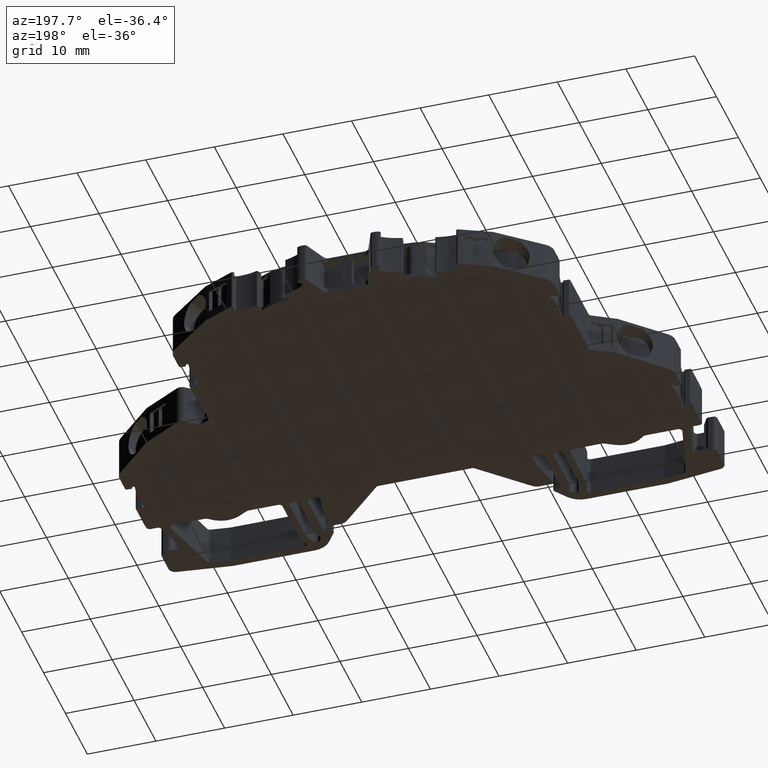
[diagram: clean part render]
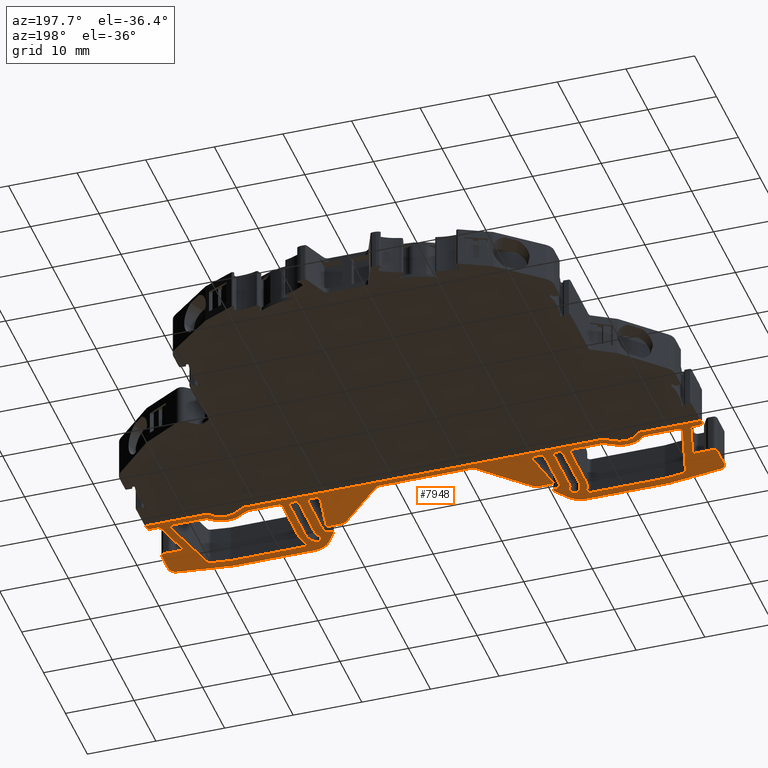
[diagram: same view with one face highlighted and labeled with its STEP entity id]
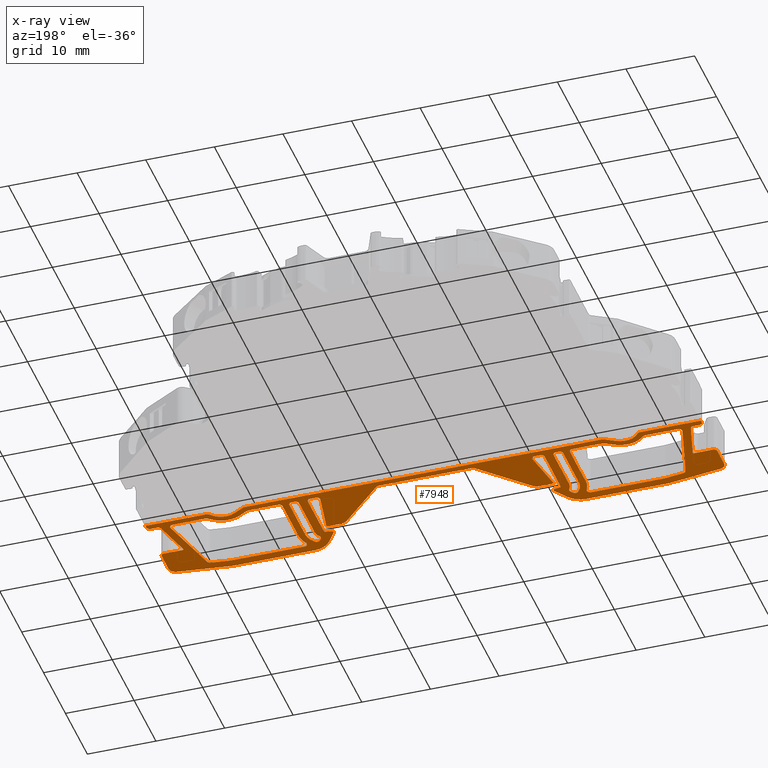
[diagram: x-ray of the same camera — body ghosted, the highlighted face saturated]
A machine part, auxiliary view. The second image highlights one B-rep face of the part: STEP entity #7948.
The next image is the same camera in x-ray: the body ghosted, the highlighted face saturated — about 0% of this face is hidden behind the body in this view.
In plain terms, the highlighted planar face has unit normal (0, 0, -1).
Its self-contained STEP definition (entity closure, byte-faithful):
#66 = EDGE_LOOP ( 'NONE', ( #6561, #6585, #6583, #6595, #6582, #6592, #6548, #6566, #6576, #6555, #6541, #6499, #6542, #6564, #6552, #6565, #6590 ) ) ;
#70 = EDGE_LOOP ( 'NONE', ( #6526, #6521, #6533, #6537, #6560, #6559, #6574, #6646, #6545, #6575, #6563 ) ) ;
#72 = EDGE_LOOP ( 'NONE', ( #6571, #6581, #6570, #6556, #6589, #6554, #6625, #6553, #6609, #6557, #6577 ) ) ;
#76 = EDGE_LOOP ( 'NONE', ( #6558, #6550, #6547, #6588, #6619, #6579, #6586, #6523, #6596, #6591, #6569, #6568, #6594, #6572, #6551, #6544, #6546 ) ) ;
#85 = EDGE_LOOP ( 'NONE', ( #6567, #6578, #6593, #6584, #6597, #6580, #6543, #6587, #6562, #6549, #6498, #6573, #6616, #6648, #6711, #6605, #6603, #6633, #6677, #6623, #6694, #6650, #6675, #6604, #6614, #6652, #6667, #6624, #6634, #6607, #6642, #6606, #6621, #6699, #6615, #6627, #6628, #6612, #6639, #6620, #6676, #6608, #6673, #6610, #6638, #6640, #6631, #6600, #6626, #6647, #6643, #6654, #6632, #6636, #6635, #6671, #6637, #6601, #6645, #6611, #6599, #6641, #6713, #6629, #6689, #6644, #6651, #6649, #6653, #6598, #6630, #6602, #6622, #6613, #6617 ) ) ;
#221 = VERTEX_POINT ( 'NONE', #2768 ) ;
#224 = VERTEX_POINT ( 'NONE', #12715 ) ;
#238 = VERTEX_POINT ( 'NONE', #12713 ) ;
#239 = VERTEX_POINT ( 'NONE', #12712 ) ;
#266 = VERTEX_POINT ( 'NONE', #12681 ) ;
#742 = CARTESIAN_POINT ( 'NONE',  ( 526.7698350924490600, -343.5363901385376300, -59.85000000000000100 ) ) ;
#752 = DIRECTION ( 'NONE',  ( 0.0000000000000000000, -1.000000000000000000, 0.0000000000000000000 ) ) ;
#758 = LINE ( 'NONE', #742, #4149 ) ;
#865 = LINE ( 'NONE', #885, #4249 ) ;
#867 = DIRECTION ( 'NONE',  ( -1.000000000000000000, 0.0000000000000000000, 0.0000000000000000000 ) ) ;
#874 = CARTESIAN_POINT ( 'NONE',  ( 515.3653727587349100, -342.3770457772095000, -59.85000000000000100 ) ) ;
#876 = DIRECTION ( 'NONE',  ( -1.000000000000000000, 0.0000000000000000000, 0.0000000000000000000 ) ) ;
#877 = CARTESIAN_POINT ( 'NONE',  ( 512.2873669321140800, -344.2949880069400000, -59.85000000000000100 ) ) ;
#885 = CARTESIAN_POINT ( 'NONE',  ( 445.7698141678904400, -344.0949880069400100, -59.85000000000000100 ) ) ;
#891 = DIRECTION ( 'NONE',  ( 0.0000000000000000000, 1.000000000000000000, 0.0000000000000000000 ) ) ;
#903 = DIRECTION ( 'NONE',  ( -0.0000000000000000000, -0.0000000000000000000, 1.000000000000000000 ) ) ;
#904 = DIRECTION ( 'NONE',  ( 0.0000000000000000000, 0.0000000000000000000, -1.000000000000000000 ) ) ;
#1247 = LINE ( 'NONE', #1271, #18865 ) ;
#1251 = DIRECTION ( 'NONE',  ( 1.000000000000000000, -3.200407717022319400E-015, 0.0000000000000000000 ) ) ;
#1270 = CARTESIAN_POINT ( 'NONE',  ( 526.7698350924490600, -343.6705542171876000, -59.85000000000000100 ) ) ;
#1271 = CARTESIAN_POINT ( 'NONE',  ( 512.2873669321140800, -343.6705542171876000, -59.85000000000000100 ) ) ;
#1280 = DIRECTION ( 'NONE',  ( 1.000000000000000000, -5.021974584310868700E-014, 0.0000000000000000000 ) ) ;
#1286 = LINE ( 'NONE', #1270, #18866 ) ;
#1292 = FACE_BOUND ( 'NONE', #66, .T. ) ;
#1295 = FACE_OUTER_BOUND ( 'NONE', #85, .T. ) ;
#1296 = DIRECTION ( 'NONE',  ( -1.000000000000000000, 0.0000000000000000000, -0.0000000000000000000 ) ) ;
#1304 = DIRECTION ( 'NONE',  ( 0.0000000000000000000, 0.0000000000000000000, -1.000000000000000000 ) ) ;
#1307 = CARTESIAN_POINT ( 'NONE',  ( 460.2522925233080300, -344.2949880069400000, -59.85000000000000100 ) ) ;
#1309 = DIRECTION ( 'NONE',  ( 0.0000000000000000000, 0.0000000000000000000, -1.000000000000000000 ) ) ;
#1310 = DIRECTION ( 'NONE',  ( -1.000000000000000000, 0.0000000000000000000, 0.0000000000000000000 ) ) ;
#1312 = FACE_BOUND ( 'NONE', #72, .T. ) ;
#1321 = FACE_BOUND ( 'NONE', #70, .T. ) ;
#1332 = FACE_BOUND ( 'NONE', #76, .T. ) ;
#1333 = PLANE ( 'NONE',  #18831 ) ;
#1334 = CARTESIAN_POINT ( 'NONE',  ( 446.2702346352530200, -351.1383342629574700, -59.85000000000000100 ) ) ;
#1349 = DIRECTION ( 'NONE',  ( 0.8660223589876533400, 0.5000052737056479600, 0.0000000000000000000 ) ) ;
#1353 = DIRECTION ( 'NONE',  ( 0.0000000000000000000, 0.0000000000000000000, -1.000000000000000000 ) ) ;
#1366 = LINE ( 'NONE', #1382, #18875 ) ;
#1368 = DIRECTION ( 'NONE',  ( -1.000000000000000000, 0.0000000000000000000, 0.0000000000000000000 ) ) ;
#1375 = CARTESIAN_POINT ( 'NONE',  ( 454.6127446604480200, -344.2949880069400000, -59.85000000000000100 ) ) ;
#1382 = CARTESIAN_POINT ( 'NONE',  ( 459.9400723353515400, -343.7542143833068700, -59.85000000000000100 ) ) ;
#1393 = DIRECTION ( 'NONE',  ( 1.000000000000000000, 6.277460993047946200E-015, 0.0000000000000000000 ) ) ;
#1395 = DIRECTION ( 'NONE',  ( -1.000000000000000000, 0.0000000000000000000, 0.0000000000000000000 ) ) ;
#1396 = CARTESIAN_POINT ( 'NONE',  ( 517.9269147949739800, -344.2949880069400000, -59.85000000000000100 ) ) ;
#1398 = DIRECTION ( 'NONE',  ( 0.8660223589877774600, -0.5000052737054329100, 0.0000000000000000000 ) ) ;
#1399 = DIRECTION ( 'NONE',  ( 0.0000000000000000000, 0.0000000000000000000, -1.000000000000000000 ) ) ;
#1401 = DIRECTION ( 'NONE',  ( -1.000000000000000000, 0.0000000000000000000, 0.0000000000000000000 ) ) ;
#1405 = CARTESIAN_POINT ( 'NONE',  ( 454.6127446604469900, -343.6705542171876000, -59.85000000000000100 ) ) ;
#1418 = DIRECTION ( 'NONE',  ( -0.0000000000000000000, -0.0000000000000000000, 1.000000000000000000 ) ) ;
#1420 = CARTESIAN_POINT ( 'NONE',  ( 457.1742866966869800, -342.3770457772095000, -59.85000000000000100 ) ) ;
#1422 = LINE ( 'NONE', #1405, #18939 ) ;
#1423 = LINE ( 'NONE', #1424, #18900 ) ;
#1424 = CARTESIAN_POINT ( 'NONE',  ( 514.0775760708334000, -344.6075437023373500, -59.85000000000000100 ) ) ;
#1510 = VECTOR ( 'NONE', #16904, 1000.000000000000100 ) ;
#1512 = VECTOR ( 'NONE', #16911, 1000.000000000000000 ) ;
#1516 = VECTOR ( 'NONE', #16938, 1000.000000000000100 ) ;
#1518 = VECTOR ( 'NONE', #16912, 999.9999999999998900 ) ;
#1519 = AXIS2_PLACEMENT_3D ( 'NONE', #10195, #10198, #10199 ) ;
#1523 = CIRCLE ( 'NONE', #1519, 2.999999999999891600 ) ;
#1939 = VERTEX_POINT ( 'NONE', #12854 ) ;
#1942 = VERTEX_POINT ( 'NONE', #12853 ) ;
#1946 = VERTEX_POINT ( 'NONE', #12859 ) ;
#1950 = VERTEX_POINT ( 'NONE', #12850 ) ;
#1956 = VERTEX_POINT ( 'NONE', #12868 ) ;
#1957 = VERTEX_POINT ( 'NONE', #12852 ) ;
#1968 = VERTEX_POINT ( 'NONE', #12860 ) ;
#1971 = VERTEX_POINT ( 'NONE', #12865 ) ;
#1981 = VERTEX_POINT ( 'NONE', #12858 ) ;
#1987 = VERTEX_POINT ( 'NONE', #12863 ) ;
#1990 = VERTEX_POINT ( 'NONE', #12870 ) ;
#1999 = VERTEX_POINT ( 'NONE', #12873 ) ;
#2002 = VERTEX_POINT ( 'NONE', #12874 ) ;
#2012 = VERTEX_POINT ( 'NONE', #11139 ) ;
#2021 = VERTEX_POINT ( 'NONE', #11156 ) ;
#2027 = VERTEX_POINT ( 'NONE', #11147 ) ;
#2029 = VERTEX_POINT ( 'NONE', #11137 ) ;
#2031 = VERTEX_POINT ( 'NONE', #11162 ) ;
#2052 = VERTEX_POINT ( 'NONE', #11135 ) ;
#2056 = VERTEX_POINT ( 'NONE', #11169 ) ;
#2063 = VERTEX_POINT ( 'NONE', #11172 ) ;
#2074 = VERTEX_POINT ( 'NONE', #11157 ) ;
#2078 = VERTEX_POINT ( 'NONE', #11143 ) ;
#2084 = VERTEX_POINT ( 'NONE', #11152 ) ;
#2087 = VERTEX_POINT ( 'NONE', #11145 ) ;
#2089 = VERTEX_POINT ( 'NONE', #11146 ) ;
#2093 = VERTEX_POINT ( 'NONE', #11165 ) ;
#2097 = VERTEX_POINT ( 'NONE', #11170 ) ;
#2099 = VERTEX_POINT ( 'NONE', #11149 ) ;
#2104 = VERTEX_POINT ( 'NONE', #11151 ) ;
#2105 = VERTEX_POINT ( 'NONE', #11153 ) ;
#2111 = VERTEX_POINT ( 'NONE', #11155 ) ;
#2113 = VERTEX_POINT ( 'NONE', #11167 ) ;
#2131 = VERTEX_POINT ( 'NONE', #11195 ) ;
#2135 = VERTEX_POINT ( 'NONE', #11178 ) ;
#2137 = VERTEX_POINT ( 'NONE', #11194 ) ;
#2148 = VERTEX_POINT ( 'NONE', #11202 ) ;
#2157 = VERTEX_POINT ( 'NONE', #11210 ) ;
#2159 = VERTEX_POINT ( 'NONE', #11214 ) ;
#2161 = VERTEX_POINT ( 'NONE', #11222 ) ;
#2171 = VERTEX_POINT ( 'NONE', #11216 ) ;
#2176 = VERTEX_POINT ( 'NONE', #11173 ) ;
#2207 = VERTEX_POINT ( 'NONE', #11212 ) ;
#2211 = VERTEX_POINT ( 'NONE', #11185 ) ;
#2218 = VERTEX_POINT ( 'NONE', #11224 ) ;
#2225 = VERTEX_POINT ( 'NONE', #11207 ) ;
#2249 = VERTEX_POINT ( 'NONE', #11197 ) ;
#2263 = VERTEX_POINT ( 'NONE', #11181 ) ;
#2282 = VERTEX_POINT ( 'NONE', #11213 ) ;
#2287 = VERTEX_POINT ( 'NONE', #11183 ) ;
#2296 = VERTEX_POINT ( 'NONE', #11316 ) ;
#2301 = VERTEX_POINT ( 'NONE', #11284 ) ;
#2304 = VERTEX_POINT ( 'NONE', #11242 ) ;
#2339 = VERTEX_POINT ( 'NONE', #11293 ) ;
#2340 = VERTEX_POINT ( 'NONE', #11297 ) ;
#2341 = VERTEX_POINT ( 'NONE', #11229 ) ;
#2343 = VERTEX_POINT ( 'NONE', #11285 ) ;
#2347 = VERTEX_POINT ( 'NONE', #11270 ) ;
#2350 = VERTEX_POINT ( 'NONE', #11247 ) ;
#2361 = VERTEX_POINT ( 'NONE', #11263 ) ;
#2363 = VERTEX_POINT ( 'NONE', #11241 ) ;
#2367 = VERTEX_POINT ( 'NONE', #11303 ) ;
#2381 = VERTEX_POINT ( 'NONE', #11253 ) ;
#2382 = VERTEX_POINT ( 'NONE', #11255 ) ;
#2389 = VERTEX_POINT ( 'NONE', #11274 ) ;
#2393 = VERTEX_POINT ( 'NONE', #11490 ) ;
#2768 = CARTESIAN_POINT ( 'NONE',  ( 460.2522925233080300, -343.6705542171874300, -59.85000000000000100 ) ) ;
#2796 = VERTEX_POINT ( 'NONE', #4043 ) ;
#2798 = VERTEX_POINT ( 'NONE', #4036 ) ;
#2799 = VERTEX_POINT ( 'NONE', #4077 ) ;
#2802 = VERTEX_POINT ( 'NONE', #4079 ) ;
#2804 = VERTEX_POINT ( 'NONE', #4037 ) ;
#2807 = VERTEX_POINT ( 'NONE', #4083 ) ;
#2809 = VERTEX_POINT ( 'NONE', #4049 ) ;
#2812 = VERTEX_POINT ( 'NONE', #4026 ) ;
#2815 = VERTEX_POINT ( 'NONE', #4065 ) ;
#2820 = VERTEX_POINT ( 'NONE', #4063 ) ;
#2821 = VERTEX_POINT ( 'NONE', #4064 ) ;
#2823 = VERTEX_POINT ( 'NONE', #4071 ) ;
#2825 = VERTEX_POINT ( 'NONE', #4032 ) ;
#2829 = VERTEX_POINT ( 'NONE', #4039 ) ;
#2830 = VERTEX_POINT ( 'NONE', #4138 ) ;
#2839 = VERTEX_POINT ( 'NONE', #4122 ) ;
#2840 = VERTEX_POINT ( 'NONE', #4129 ) ;
#2842 = VERTEX_POINT ( 'NONE', #4096 ) ;
#2845 = VERTEX_POINT ( 'NONE', #4124 ) ;
#2850 = VERTEX_POINT ( 'NONE', #4115 ) ;
#2854 = VERTEX_POINT ( 'NONE', #4130 ) ;
#2855 = VERTEX_POINT ( 'NONE', #4090 ) ;
#2857 = VERTEX_POINT ( 'NONE', #4112 ) ;
#2858 = VERTEX_POINT ( 'NONE', #4132 ) ;
#2859 = VERTEX_POINT ( 'NONE', #4133 ) ;
#2861 = VERTEX_POINT ( 'NONE', #4135 ) ;
#3095 = EDGE_CURVE ( 'NONE', #2249, #2340, #15024, .T. ) ;
#3103 = EDGE_CURVE ( 'NONE', #2350, #2282, #15032, .T. ) ;
#3114 = EDGE_CURVE ( 'NONE', #2825, #2363, #14903, .T. ) ;
#3119 = EDGE_CURVE ( 'NONE', #2343, #17173, #14913, .T. ) ;
#3120 = EDGE_CURVE ( 'NONE', #17137, #2347, #3686, .T. ) ;
#3124 = EDGE_CURVE ( 'NONE', #2381, #2343, #3671, .T. ) ;
#3130 = EDGE_CURVE ( 'NONE', #2339, #2341, #14899, .T. ) ;
#3135 = EDGE_CURVE ( 'NONE', #2347, #2339, #14925, .T. ) ;
#3144 = EDGE_CURVE ( 'NONE', #2363, #2393, #3723, .T. ) ;
#3145 = EDGE_CURVE ( 'NONE', #2389, #2249, #14879, .T. ) ;
#3150 = EDGE_CURVE ( 'NONE', #2304, #2381, #14942, .T. ) ;
#3151 = EDGE_CURVE ( 'NONE', #2340, #2296, #3743, .T. ) ;
#3152 = EDGE_CURVE ( 'NONE', #2207, #17169, #3753, .T. ) ;
#3155 = EDGE_CURVE ( 'NONE', #2393, #2207, #14940, .T. ) ;
#3542 = EDGE_CURVE ( 'NONE', #2296, #2301, #1523, .T. ) ;
#3548 = EDGE_CURVE ( 'NONE', #2301, #2304, #16903, .T. ) ;
#3552 = EDGE_CURVE ( 'NONE', #2225, #2350, #16908, .T. ) ;
#3554 = EDGE_CURVE ( 'NONE', #2341, #2382, #16910, .T. ) ;
#3555 = EDGE_CURVE ( 'NONE', #2282, #2389, #16919, .T. ) ;
#3602 = EDGE_CURVE ( 'NONE', #2382, #2225, #15576, .T. ) ;
#3604 = DIRECTION ( 'NONE',  ( -1.000000000000000000, 0.0000000000000000000, 0.0000000000000000000 ) ) ;
#3632 = CARTESIAN_POINT ( 'NONE',  ( 464.8198252384780200, -345.0949880069400100, -59.85000000000000100 ) ) ;
#3637 = DIRECTION ( 'NONE',  ( 0.0000000000000000000, 0.0000000000000000000, -1.000000000000000000 ) ) ;
#3655 = DIRECTION ( 'NONE',  ( 0.0000000000000000000, 0.0000000000000000000, -1.000000000000000000 ) ) ;
#3656 = CARTESIAN_POINT ( 'NONE',  ( 526.2694146250869400, -351.1383379796940300, -59.85000000000000100 ) ) ;
#3663 = DIRECTION ( 'NONE',  ( 0.0000000000000000000, 0.0000000000000000000, -1.000000000000000000 ) ) ;
#3664 = CARTESIAN_POINT ( 'NONE',  ( 454.0286686228660100, -344.5949880069400100, -59.85000000000000100 ) ) ;
#3670 = DIRECTION ( 'NONE',  ( -1.000000000000000000, 0.0000000000000000000, 0.0000000000000000000 ) ) ;
#3671 = LINE ( 'NONE', #3691, #14890 ) ;
#3672 = CARTESIAN_POINT ( 'NONE',  ( 449.4583546813685200, -345.0949880069400100, -59.85000000000000100 ) ) ;
#3674 = DIRECTION ( 'NONE',  ( -0.2588027365803100600, 0.9659301959968652500, 0.0000000000000000000 ) ) ;
#3680 = DIRECTION ( 'NONE',  ( -1.000000000000000000, 0.0000000000000000000, 0.0000000000000000000 ) ) ;
#3686 = LINE ( 'NONE', #3664, #14892 ) ;
#3688 = DIRECTION ( 'NONE',  ( 1.000000000000000000, -1.214602584019994100E-014, 0.0000000000000000000 ) ) ;
#3691 = CARTESIAN_POINT ( 'NONE',  ( 448.9753895833700300, -345.2243893752300300, -59.85000000000000100 ) ) ;
#3693 = DIRECTION ( 'NONE',  ( -1.000000000000000000, 0.0000000000000000000, 0.0000000000000000000 ) ) ;
#3709 = DIRECTION ( 'NONE',  ( -1.000000000000000000, 0.0000000000000000000, 0.0000000000000000000 ) ) ;
#3710 = DIRECTION ( 'NONE',  ( -0.0000000000000000000, -0.0000000000000000000, 1.000000000000000000 ) ) ;
#3715 = CARTESIAN_POINT ( 'NONE',  ( 457.1742763234730100, -342.3770457772095000, -59.85000000000000100 ) ) ;
#3719 = DIRECTION ( 'NONE',  ( 0.0000000000000000000, 0.0000000000000000000, -1.000000000000000000 ) ) ;
#3723 = LINE ( 'NONE', #3759, #14877 ) ;
#3724 = CARTESIAN_POINT ( 'NONE',  ( 454.0286686228660100, -345.5949880069400100, -59.85000000000000100 ) ) ;
#3735 = CARTESIAN_POINT ( 'NONE',  ( 525.7694162987299900, -354.2658068636930000, -59.85000000000000100 ) ) ;
#3736 = DIRECTION ( 'NONE',  ( -1.000000000000000000, 0.0000000000000000000, 0.0000000000000000000 ) ) ;
#3739 = DIRECTION ( 'NONE',  ( -1.000000000000000000, 5.254355787593750600E-015, 0.0000000000000000000 ) ) ;
#3743 = LINE ( 'NONE', #3752, #14935 ) ;
#3744 = DIRECTION ( 'NONE',  ( -1.000000000000000000, 0.0000000000000000000, 0.0000000000000000000 ) ) ;
#3745 = DIRECTION ( 'NONE',  ( -0.0000000000000000000, -0.0000000000000000000, 1.000000000000000000 ) ) ;
#3748 = DIRECTION ( 'NONE',  ( 7.099821670284220500E-014, -1.000000000000000000, 0.0000000000000000000 ) ) ;
#3751 = DIRECTION ( 'NONE',  ( -1.000000000000000000, 0.0000000000000000000, 0.0000000000000000000 ) ) ;
#3752 = CARTESIAN_POINT ( 'NONE',  ( 454.7990482216059700, -354.9950001424455200, -59.85000000000000100 ) ) ;
#3753 = LINE ( 'NONE', #3764, #14938 ) ;
#3754 = DIRECTION ( 'NONE',  ( -0.9914448352233220500, -0.1305263908525769200, 0.0000000000000000000 ) ) ;
#3756 = DIRECTION ( 'NONE',  ( 0.0000000000000000000, 0.0000000000000000000, -1.000000000000000000 ) ) ;
#3757 = CARTESIAN_POINT ( 'NONE',  ( 469.2198260439039900, -352.3757194476580100, -59.85000000000000100 ) ) ;
#3759 = CARTESIAN_POINT ( 'NONE',  ( 526.7694151317267600, -351.1383384863334500, -59.85000000000000100 ) ) ;
#3761 = CARTESIAN_POINT ( 'NONE',  ( 451.8797140103819700, -354.1322343751890000, -59.85000000000000100 ) ) ;
#3764 = CARTESIAN_POINT ( 'NONE',  ( 525.8999435519369900, -355.2572504083117300, -59.85000000000000100 ) ) ;
#3777 = DIRECTION ( 'NONE',  ( 0.0000000000000000000, 0.0000000000000000000, -1.000000000000000000 ) ) ;
#4026 = CARTESIAN_POINT ( 'NONE',  ( 501.7388387925871600, -345.0949921523815100, -59.85000000000000100 ) ) ;
#4032 = CARTESIAN_POINT ( 'NONE',  ( 526.2694151317269900, -350.6383374730544900, -59.85000000000000100 ) ) ;
#4036 = CARTESIAN_POINT ( 'NONE',  ( 502.2936728769718100, -353.0115476650664700, -59.85000000000000100 ) ) ;
#4037 = CARTESIAN_POINT ( 'NONE',  ( 448.5981664256632400, -355.5157415991079100, -59.85000000000000100 ) ) ;
#4039 = CARTESIAN_POINT ( 'NONE',  ( 526.7698350924490600, -344.0949917236760000, -59.85000000000000100 ) ) ;
#4043 = CARTESIAN_POINT ( 'NONE',  ( 470.1917189126134500, -353.1836224383016500, -59.85000000000000100 ) ) ;
#4049 = CARTESIAN_POINT ( 'NONE',  ( 502.3479311246780400, -353.1836261589739900, -59.85000000000000100 ) ) ;
#4063 = CARTESIAN_POINT ( 'NONE',  ( 503.5198254961879900, -345.0949927408910300, -59.85000000000000100 ) ) ;
#4064 = CARTESIAN_POINT ( 'NONE',  ( 447.1808241945805100, -344.5949880069400700, -59.85000000000000100 ) ) ;
#4065 = CARTESIAN_POINT ( 'NONE',  ( 502.2388397235779400, -344.5949917276120700, -59.85000000000000100 ) ) ;
#4071 = CARTESIAN_POINT ( 'NONE',  ( 524.8758577227258700, -344.9655987348299400, -59.85000000000000100 ) ) ;
#4077 = CARTESIAN_POINT ( 'NONE',  ( 448.5981664256632400, -355.5150833356008800, -59.85000000000000100 ) ) ;
#4079 = CARTESIAN_POINT ( 'NONE',  ( 466.3198223617008600, -345.0952235319190300, -59.85000000000000100 ) ) ;
#4083 = CARTESIAN_POINT ( 'NONE',  ( 470.7932161362069800, -345.1818159385935000, -59.85000000000000100 ) ) ;
#4090 = CARTESIAN_POINT ( 'NONE',  ( 469.9198236721330200, -351.4868160326694800, -59.85000000000000100 ) ) ;
#4096 = CARTESIAN_POINT ( 'NONE',  ( 468.9087684898920000, -355.0157818426424700, -59.85000000000000100 ) ) ;
#4112 = CARTESIAN_POINT ( 'NONE',  ( 500.8009238982750200, -351.4868160326694800, -59.85000000000000100 ) ) ;
#4115 = CARTESIAN_POINT ( 'NONE',  ( 446.2698141678904400, -344.5949880069400100, -59.85000000000000100 ) ) ;
#4122 = CARTESIAN_POINT ( 'NONE',  ( 447.6637915376144900, -344.9655950180935500, -59.85000000000000100 ) ) ;
#4124 = CARTESIAN_POINT ( 'NONE',  ( 502.6198273202420000, -351.4868160326693100, -59.85000000000000100 ) ) ;
#4126 = DIRECTION ( 'NONE',  ( 0.0000000000000000000, 0.0000000000000000000, -1.000000000000000000 ) ) ;
#4129 = CARTESIAN_POINT ( 'NONE',  ( 503.0198254961879300, -344.5949917276116100, -59.85000000000000100 ) ) ;
#4130 = CARTESIAN_POINT ( 'NONE',  ( 454.2377847860639700, -356.2582125911563900, -59.85000000000000100 ) ) ;
#4132 = CARTESIAN_POINT ( 'NONE',  ( 445.7698141678904400, -344.0949880069400100, -59.85000000000000100 ) ) ;
#4133 = CARTESIAN_POINT ( 'NONE',  ( 526.2698350924490600, -344.5949917236760000, -59.85000000000000100 ) ) ;
#4134 = CARTESIAN_POINT ( 'NONE',  ( 465.3638355095799900, -354.4950001424455200, -59.85000000000000100 ) ) ;
#4135 = CARTESIAN_POINT ( 'NONE',  ( 523.4032743289529900, -350.4621074361775200, -59.85000000000000100 ) ) ;
#4137 = DIRECTION ( 'NONE',  ( -1.000000000000000000, 0.0000000000000000000, 0.0000000000000000000 ) ) ;
#4138 = CARTESIAN_POINT ( 'NONE',  ( 493.4342202620940200, -344.7414381843980200, -59.85000000000000100 ) ) ;
#4149 = VECTOR ( 'NONE', #752, 1000.000000000000000 ) ;
#4220 = AXIS2_PLACEMENT_3D ( 'NONE', #874, #903, #867 ) ;
#4235 = CIRCLE ( 'NONE', #4220, 2.575566210247681700 ) ;
#4239 = AXIS2_PLACEMENT_3D ( 'NONE', #877, #904, #876 ) ;
#4249 = VECTOR ( 'NONE', #891, 1000.000000000000000 ) ;
#4257 = CIRCLE ( 'NONE', #4239, 0.6244337897522989100 ) ;
#4440 = LINE ( 'NONE', #4478, #9743 ) ;
#4442 = LINE ( 'NONE', #4444, #9740 ) ;
#4443 = DIRECTION ( 'NONE',  ( -1.000000000000000000, 0.0000000000000000000, 0.0000000000000000000 ) ) ;
#4444 = CARTESIAN_POINT ( 'NONE',  ( 471.7387270941000600, -351.4868160326691400, -59.85000000000000100 ) ) ;
#4445 = CARTESIAN_POINT ( 'NONE',  ( 502.5936730325780700, -353.0115476650664700, -59.85000000000000100 ) ) ;
#4448 = CARTESIAN_POINT ( 'NONE',  ( 466.4513492846080000, -353.2949997967385200, -59.85000000000000100 ) ) ;
#4449 = DIRECTION ( 'NONE',  ( -1.000000000000000000, 0.0000000000000000000, 0.0000000000000000000 ) ) ;
#4451 = DIRECTION ( 'NONE',  ( 0.0000000000000000000, -1.000000000000000000, 0.0000000000000000000 ) ) ;
#4452 = DIRECTION ( 'NONE',  ( 0.0000000000000000000, 0.0000000000000000000, -1.000000000000000000 ) ) ;
#4454 = DIRECTION ( 'NONE',  ( -0.9914448352233074000, 0.1305263908526879100, 0.0000000000000000000 ) ) ;
#4460 = DIRECTION ( 'NONE',  ( -1.000000000000000000, -1.831141243482633900E-013, 0.0000000000000000000 ) ) ;
#4461 = LINE ( 'NONE', #4475, #9795 ) ;
#4464 = DIRECTION ( 'NONE',  ( 0.0000000000000000000, 0.0000000000000000000, -1.000000000000000000 ) ) ;
#4470 = DIRECTION ( 'NONE',  ( -1.000000000000000000, 0.0000000000000000000, 0.0000000000000000000 ) ) ;
#4473 = DIRECTION ( 'NONE',  ( 0.0000000000000000000, 0.0000000000000000000, -1.000000000000000000 ) ) ;
#4474 = CARTESIAN_POINT ( 'NONE',  ( 469.9459747908659900, -353.0115471059894500, -59.85000000000000100 ) ) ;
#4475 = CARTESIAN_POINT ( 'NONE',  ( 454.2377847860639700, -356.2582125911564500, -59.85000000000000100 ) ) ;
#4478 = CARTESIAN_POINT ( 'NONE',  ( 524.0908524356827900, -355.4954221408569300, -59.85000000000000100 ) ) ;
#4482 = DIRECTION ( 'NONE',  ( -1.000000000000000000, 0.0000000000000000000, 0.0000000000000000000 ) ) ;
#4487 = DIRECTION ( 'NONE',  ( -1.000000000000000000, 0.0000000000000000000, 0.0000000000000000000 ) ) ;
#4489 = CARTESIAN_POINT ( 'NONE',  ( 469.2198260439039900, -352.3757194476580100, -59.85000000000000100 ) ) ;
#4491 = CARTESIAN_POINT ( 'NONE',  ( 469.5198260028270200, -345.0949922342514900, -59.85000000000000100 ) ) ;
#4492 = DIRECTION ( 'NONE',  ( 0.0000000000000000000, 1.000000000000000000, 0.0000000000000000000 ) ) ;
#4495 = CARTESIAN_POINT ( 'NONE',  ( 470.1917189126136200, -353.1836224383017700, -59.85000000000000100 ) ) ;
#4498 = LINE ( 'NONE', #4517, #9775 ) ;
#4499 = DIRECTION ( 'NONE',  ( -1.000000000000000000, 0.0000000000000000000, 0.0000000000000000000 ) ) ;
#4500 = DIRECTION ( 'NONE',  ( -0.0000000000000000000, -0.0000000000000000000, 1.000000000000000000 ) ) ;
#4508 = DIRECTION ( 'NONE',  ( -0.0000000000000000000, -0.0000000000000000000, 1.000000000000000000 ) ) ;
#4513 = DIRECTION ( 'NONE',  ( -0.5735940153011621600, -0.8191397350945015500, 0.0000000000000000000 ) ) ;
#4514 = DIRECTION ( 'NONE',  ( -0.0000000000000000000, -0.0000000000000000000, 1.000000000000000000 ) ) ;
#4515 = LINE ( 'NONE', #4524, #9777 ) ;
#4517 = CARTESIAN_POINT ( 'NONE',  ( 448.5981664256632400, -355.5157415991079100, -59.85000000000000100 ) ) ;
#4523 = DIRECTION ( 'NONE',  ( 3.049758627851890000E-014, -1.000000000000000000, 0.0000000000000000000 ) ) ;
#4524 = CARTESIAN_POINT ( 'NONE',  ( 469.0198254961877600, -345.0949927408910300, -59.85000000000000100 ) ) ;
#4526 = LINE ( 'NONE', #4495, #9774 ) ;
#4527 = CARTESIAN_POINT ( 'NONE',  ( 470.3008117750179600, -345.0949921523815100, -59.85000000000000100 ) ) ;
#4530 = CARTESIAN_POINT ( 'NONE',  ( 469.1850793738280500, -352.5726785500259600, -59.85000000000000100 ) ) ;
#4541 = DIRECTION ( 'NONE',  ( -1.000000000000000000, -2.132349391426592900E-013, 0.0000000000000000000 ) ) ;
#4542 = DIRECTION ( 'NONE',  ( -1.000000000000000000, 0.0000000000000000000, 0.0000000000000000000 ) ) ;
#4543 = DIRECTION ( 'NONE',  ( 0.9847924157078126200, -0.1737351373912908400, 0.0000000000000000000 ) ) ;
#4545 = CARTESIAN_POINT ( 'NONE',  ( 469.9198241074029700, -351.2868156674349500, -59.85000000000000100 ) ) ;
#4550 = LINE ( 'NONE', #4556, #9814 ) ;
#4552 = LINE ( 'NONE', #4530, #9852 ) ;
#4556 = CARTESIAN_POINT ( 'NONE',  ( 470.3008112687979900, -344.5949917276119000, -59.85000000000000100 ) ) ;
#4558 = DIRECTION ( 'NONE',  ( 0.0000000000000000000, 0.0000000000000000000, -1.000000000000000000 ) ) ;
#4585 = LINE ( 'NONE', #4586, #9812 ) ;
#4586 = CARTESIAN_POINT ( 'NONE',  ( 466.4513492846080000, -356.2949997967388600, -59.85000000000000100 ) ) ;
#4596 = DIRECTION ( 'NONE',  ( -1.000000000000000000, 2.858378835104847600E-014, 0.0000000000000000000 ) ) ;
#4956 = CARTESIAN_POINT ( 'NONE',  ( 455.1125925983539600, -343.9207292772410400, -59.85000000000000100 ) ) ;
#5000 = CARTESIAN_POINT ( 'NONE',  ( 454.7990482216059700, -351.9950001424455200, -59.85000000000000100 ) ) ;
#5004 = CARTESIAN_POINT ( 'NONE',  ( 518.5109823695080400, -344.5949917276125200, -59.85000000000000100 ) ) ;
#5010 = CARTESIAN_POINT ( 'NONE',  ( 514.0775760708334000, -344.6075437023373500, -59.85000000000000100 ) ) ;
#5014 = LINE ( 'NONE', #5067, #9721 ) ;
#5015 = DIRECTION ( 'NONE',  ( 0.0000000000000000000, 0.0000000000000000000, -1.000000000000000000 ) ) ;
#5016 = CARTESIAN_POINT ( 'NONE',  ( 520.6599351899129700, -354.1322376358410200, -59.85000000000000100 ) ) ;
#5019 = DIRECTION ( 'NONE',  ( -1.000000000000000000, 0.0000000000000000000, 0.0000000000000000000 ) ) ;
#5021 = CARTESIAN_POINT ( 'NONE',  ( 517.9269147949739800, -343.6705542171871500, -59.85000000000000100 ) ) ;
#5022 = LINE ( 'NONE', #5073, #9628 ) ;
#5023 = DIRECTION ( 'NONE',  ( -1.000000000000000000, 0.0000000000000000000, 0.0000000000000000000 ) ) ;
#5027 = CARTESIAN_POINT ( 'NONE',  ( 466.8200467698629800, -345.0952235319190300, -59.85000000000000100 ) ) ;
#5028 = CARTESIAN_POINT ( 'NONE',  ( 512.5995871200694900, -343.7542143833067600, -59.85000000000000100 ) ) ;
#5029 = DIRECTION ( 'NONE',  ( -1.000000000000000000, 0.0000000000000000000, 0.0000000000000000000 ) ) ;
#5034 = DIRECTION ( 'NONE',  ( 0.0000000000000000000, 0.0000000000000000000, -1.000000000000000000 ) ) ;
#5036 = CARTESIAN_POINT ( 'NONE',  ( 526.7698350924490600, -343.6705542171876000, -59.85000000000000100 ) ) ;
#5037 = DIRECTION ( 'NONE',  ( 0.0000000000000000000, -1.000000000000000000, 0.0000000000000000000 ) ) ;
#5038 = CARTESIAN_POINT ( 'NONE',  ( 512.2873669321140800, -343.6705542171877100, -59.85000000000000100 ) ) ;
#5039 = DIRECTION ( 'NONE',  ( -1.000000000000000000, 0.0000000000000000000, 0.0000000000000000000 ) ) ;
#5041 = DIRECTION ( 'NONE',  ( -1.000000000000000000, 0.0000000000000000000, 0.0000000000000000000 ) ) ;
#5044 = LINE ( 'NONE', #5051, #9756 ) ;
#5047 = DIRECTION ( 'NONE',  ( 0.0000000000000000000, 0.0000000000000000000, -1.000000000000000000 ) ) ;
#5048 = CARTESIAN_POINT ( 'NONE',  ( 459.9400723353515400, -343.7542143833069300, -59.85000000000000100 ) ) ;
#5049 = DIRECTION ( 'NONE',  ( 0.0000000000000000000, 0.0000000000000000000, -1.000000000000000000 ) ) ;
#5050 = DIRECTION ( 'NONE',  ( 0.0000000000000000000, 1.000000000000000000, 0.0000000000000000000 ) ) ;
#5051 = CARTESIAN_POINT ( 'NONE',  ( 469.7228622813139500, -351.2520854909635100, -59.85000000000000100 ) ) ;
#5057 = DIRECTION ( 'NONE',  ( 0.0000000000000000000, 0.0000000000000000000, -1.000000000000000000 ) ) ;
#5064 = DIRECTION ( 'NONE',  ( 0.0000000000000000000, 0.0000000000000000000, -1.000000000000000000 ) ) ;
#5067 = CARTESIAN_POINT ( 'NONE',  ( 466.3198224120129700, -352.3757241696179700, -59.85000000000000100 ) ) ;
#5069 = DIRECTION ( 'NONE',  ( 1.000000000000000000, 0.0000000000000000000, 0.0000000000000000000 ) ) ;
#5073 = CARTESIAN_POINT ( 'NONE',  ( 506.2198286436029100, -352.3757241696164900, -59.85000000000000100 ) ) ;
#5076 = CARTESIAN_POINT ( 'NONE',  ( 467.2198284954490100, -345.0949873178390100, -59.85000000000000100 ) ) ;
#5079 = DIRECTION ( 'NONE',  ( 0.1736484219629229600, 0.9848077099362020400, 0.0000000000000000000 ) ) ;
#5086 = CARTESIAN_POINT ( 'NONE',  ( 517.7406009786890300, -351.9950034030974800, -59.85000000000000100 ) ) ;
#5087 = CARTESIAN_POINT ( 'NONE',  ( 518.5109823695080400, -345.5949917276125200, -59.85000000000000100 ) ) ;
#5088 = DIRECTION ( 'NONE',  ( -1.000000000000000000, 0.0000000000000000000, 0.0000000000000000000 ) ) ;
#5093 = LINE ( 'NONE', #5004, #9609 ) ;
#5113 = DIRECTION ( 'NONE',  ( -1.000000000000000000, 0.0000000000000000000, 0.0000000000000000000 ) ) ;
#5115 = CARTESIAN_POINT ( 'NONE',  ( 468.0821661915489900, -353.9298327709404900, -59.85000000000000100 ) ) ;
#5117 = LINE ( 'NONE', #5115, #9732 ) ;
#5119 = CARTESIAN_POINT ( 'NONE',  ( 505.3198224969270900, -345.0949873178390100, -59.85000000000000100 ) ) ;
#5131 = DIRECTION ( 'NONE',  ( -0.5735920096999779200, -0.8191411394920539200, 0.0000000000000000000 ) ) ;
#5136 = DIRECTION ( 'NONE',  ( 0.0000000000000000000, 0.0000000000000000000, -1.000000000000000000 ) ) ;
#5139 = DIRECTION ( 'NONE',  ( -0.0000000000000000000, -0.0000000000000000000, 1.000000000000000000 ) ) ;
#5142 = CARTESIAN_POINT ( 'NONE',  ( 467.6725971927760400, -353.6430351885774700, -59.85000000000000100 ) ) ;
#5147 = LINE ( 'NONE', #5178, #9694 ) ;
#5151 = DIRECTION ( 'NONE',  ( 0.0000000000000000000, 0.0000000000000000000, -1.000000000000000000 ) ) ;
#5157 = DIRECTION ( 'NONE',  ( 0.0000000000000000000, 0.0000000000000000000, -1.000000000000000000 ) ) ;
#5158 = CARTESIAN_POINT ( 'NONE',  ( 469.2198260439039900, -352.3757194476580100, -59.85000000000000100 ) ) ;
#5159 = DIRECTION ( 'NONE',  ( 0.9999999998265302100, -1.862630952425070300E-005, 0.0000000000000000000 ) ) ;
#5160 = LINE ( 'NONE', #5166, #9723 ) ;
#5161 = DIRECTION ( 'NONE',  ( 0.0000000000000000000, 0.0000000000000000000, -1.000000000000000000 ) ) ;
#5163 = CARTESIAN_POINT ( 'NONE',  ( 511.9390306497139100, -345.5949917276125200, -59.85000000000000100 ) ) ;
#5165 = CARTESIAN_POINT ( 'NONE',  ( 505.7196042857530100, -345.0952235319484800, -59.85000000000000100 ) ) ;
#5166 = CARTESIAN_POINT ( 'NONE',  ( 504.4574848573990400, -353.9298328991549700, -59.85000000000000100 ) ) ;
#5168 = DIRECTION ( 'NONE',  ( -0.5735920096998878800, 0.8191411394921168700, 0.0000000000000000000 ) ) ;
#5171 = DIRECTION ( 'NONE',  ( -1.000000000000000000, 0.0000000000000000000, 0.0000000000000000000 ) ) ;
#5173 = DIRECTION ( 'NONE',  ( -1.000000000000000000, 0.0000000000000000000, 0.0000000000000000000 ) ) ;
#5175 = DIRECTION ( 'NONE',  ( -1.000000000000000000, 0.0000000000000000000, 0.0000000000000000000 ) ) ;
#5177 = DIRECTION ( 'NONE',  ( -1.000000000000000000, 0.0000000000000000000, 0.0000000000000000000 ) ) ;
#5178 = CARTESIAN_POINT ( 'NONE',  ( 505.7198378935170200, -344.5949991783345500, -59.85000000000000100 ) ) ;
#5185 = CARTESIAN_POINT ( 'NONE',  ( 504.8670537816960300, -353.6430352104350200, -59.85000000000000100 ) ) ;
#5187 = DIRECTION ( 'NONE',  ( 0.0000000000000000000, 0.0000000000000000000, -1.000000000000000000 ) ) ;
#5188 = CARTESIAN_POINT ( 'NONE',  ( 467.4358376047830500, -353.9811485747740100, -59.85000000000000100 ) ) ;
#5190 = DIRECTION ( 'NONE',  ( 0.0000000000000000000, 0.0000000000000000000, -1.000000000000000000 ) ) ;
#5191 = DIRECTION ( 'NONE',  ( -1.000000000000000000, 0.0000000000000000000, 0.0000000000000000000 ) ) ;
#5192 = CARTESIAN_POINT ( 'NONE',  ( 505.1038134061469700, -353.9811486486960300, -59.85000000000000100 ) ) ;
#5197 = DIRECTION ( 'NONE',  ( -1.000000000000000000, 0.0000000000000000000, 0.0000000000000000000 ) ) ;
#5199 = CARTESIAN_POINT ( 'NONE',  ( 504.8198269066990100, -345.0949917276930100, -59.85000000000000100 ) ) ;
#5202 = DIRECTION ( 'NONE',  ( 0.0000000000000000000, 0.0000000000000000000, -1.000000000000000000 ) ) ;
#5205 = LINE ( 'NONE', #5199, #9682 ) ;
#5206 = DIRECTION ( 'NONE',  ( 0.0000000000000000000, -1.000000000000000000, 0.0000000000000000000 ) ) ;
#5209 = DIRECTION ( 'NONE',  ( 0.0000000000000000000, 0.0000000000000000000, -1.000000000000000000 ) ) ;
#5210 = CARTESIAN_POINT ( 'NONE',  ( 467.7198240856770300, -345.0949917276930100, -59.85000000000000100 ) ) ;
#5213 = CARTESIAN_POINT ( 'NONE',  ( 503.3198249484709700, -352.3757194476580100, -59.85000000000000100 ) ) ;
#5214 = LINE ( 'NONE', #5210, #9701 ) ;
#5216 = DIRECTION ( 'NONE',  ( 0.0000000000000000000, 1.000000000000000000, 0.0000000000000000000 ) ) ;
#5219 = DIRECTION ( 'NONE',  ( -1.000000000000000000, 0.0000000000000000000, 0.0000000000000000000 ) ) ;
#5220 = DIRECTION ( 'NONE',  ( -1.000000000000000000, 0.0000000000000000000, 0.0000000000000000000 ) ) ;
#5225 = CARTESIAN_POINT ( 'NONE',  ( 507.7198257538949500, -344.5949917276125200, -59.85000000000000100 ) ) ;
#5229 = CARTESIAN_POINT ( 'NONE',  ( 515.3653746689010400, -342.3770494978825200, -59.85000000000000100 ) ) ;
#5237 = DIRECTION ( 'NONE',  ( 1.000000000000000000, 0.0000000000000000000, 0.0000000000000000000 ) ) ;
#5240 = CARTESIAN_POINT ( 'NONE',  ( 503.3198249484709700, -352.3757194476580100, -59.85000000000000100 ) ) ;
#5243 = DIRECTION ( 'NONE',  ( -0.0000000000000000000, -0.0000000000000000000, 1.000000000000000000 ) ) ;
#5247 = DIRECTION ( 'NONE',  ( -0.0000000000000000000, -0.0000000000000000000, 1.000000000000000000 ) ) ;
#5248 = DIRECTION ( 'NONE',  ( -1.000000000000000000, 0.0000000000000000000, 0.0000000000000000000 ) ) ;
#5249 = CARTESIAN_POINT ( 'NONE',  ( 507.7198257538949500, -345.0949917276125200, -59.85000000000000100 ) ) ;
#5250 = LINE ( 'NONE', #5225, #9550 ) ;
#5251 = DIRECTION ( 'NONE',  ( 0.0000000000000000000, 0.0000000000000000000, -1.000000000000000000 ) ) ;
#5258 = DIRECTION ( 'NONE',  ( -1.000000000000000000, 0.0000000000000000000, 0.0000000000000000000 ) ) ;
#5265 = DIRECTION ( 'NONE',  ( -1.000000000000000000, 0.0000000000000000000, 0.0000000000000000000 ) ) ;
#5311 = LINE ( 'NONE', #5325, #14738 ) ;
#5313 = LINE ( 'NONE', #5333, #14736 ) ;
#5315 = DIRECTION ( 'NONE',  ( -0.0000000000000000000, -0.0000000000000000000, 1.000000000000000000 ) ) ;
#5316 = DIRECTION ( 'NONE',  ( -1.000000000000000000, 0.0000000000000000000, 0.0000000000000000000 ) ) ;
#5321 = DIRECTION ( 'NONE',  ( -0.2588027365803158800, -0.9659301959968636900, 0.0000000000000000000 ) ) ;
#5325 = CARTESIAN_POINT ( 'NONE',  ( 517.7406009786890300, -354.9950034030969700, -59.85000000000000100 ) ) ;
#5329 = CARTESIAN_POINT ( 'NONE',  ( 503.3198249484709700, -352.3757194476580100, -59.85000000000000100 ) ) ;
#5333 = CARTESIAN_POINT ( 'NONE',  ( 523.5642596169259400, -345.2243926358814900, -59.85000000000000100 ) ) ;
#5340 = DIRECTION ( 'NONE',  ( -1.000000000000000000, 0.0000000000000000000, 0.0000000000000000000 ) ) ;
#5359 = LINE ( 'NONE', #5379, #14766 ) ;
#5360 = DIRECTION ( 'NONE',  ( 0.8660223589877615900, -0.5000052737054607700, 0.0000000000000000000 ) ) ;
#5379 = CARTESIAN_POINT ( 'NONE',  ( 512.4390359234189400, -344.7289693686250300, -59.85000000000000100 ) ) ;
#5399 = LINE ( 'NONE', #5400, #14824 ) ;
#5400 = CARTESIAN_POINT ( 'NONE',  ( 507.2198265012079900, -352.3757231751340000, -59.85000000000000100 ) ) ;
#5407 = DIRECTION ( 'NONE',  ( 0.0000000000000000000, 0.0000000000000000000, -1.000000000000000000 ) ) ;
#5409 = DIRECTION ( 'NONE',  ( -0.9914448352233119500, -0.1305263908526533800, 0.0000000000000000000 ) ) ;
#5412 = DIRECTION ( 'NONE',  ( -1.026424864084920600E-007, 0.9999999999999947800, 0.0000000000000000000 ) ) ;
#5415 = CARTESIAN_POINT ( 'NONE',  ( 507.1758136907161000, -354.4950034030969700, -59.85000000000000100 ) ) ;
#5424 = CARTESIAN_POINT ( 'NONE',  ( 520.7251983853389000, -354.6279600534525100, -59.85000000000000100 ) ) ;
#5431 = LINE ( 'NONE', #5424, #14815 ) ;
#5432 = DIRECTION ( 'NONE',  ( -1.000000000000000000, 0.0000000000000000000, 0.0000000000000000000 ) ) ;
#5433 = DIRECTION ( 'NONE',  ( 0.0000000000000000000, 0.0000000000000000000, -1.000000000000000000 ) ) ;
#5435 = DIRECTION ( 'NONE',  ( -1.000000000000000000, 0.0000000000000000000, 0.0000000000000000000 ) ) ;
#5440 = CARTESIAN_POINT ( 'NONE',  ( 523.0812943956740400, -345.0949917276090000, -59.85000000000000100 ) ) ;
#6498 = ORIENTED_EDGE ( 'NONE', *, *, #7971, .T. ) ;
#6499 = ORIENTED_EDGE ( 'NONE', *, *, #14083, .F. ) ;
#6521 = ORIENTED_EDGE ( 'NONE', *, *, #13940, .F. ) ;
#6523 = ORIENTED_EDGE ( 'NONE', *, *, #3548, .F. ) ;
#6526 = ORIENTED_EDGE ( 'NONE', *, *, #13937, .F. ) ;
#6533 = ORIENTED_EDGE ( 'NONE', *, *, #13900, .F. ) ;
#6537 = ORIENTED_EDGE ( 'NONE', *, *, #13999, .F. ) ;
#6541 = ORIENTED_EDGE ( 'NONE', *, *, #14061, .F. ) ;
#6542 = ORIENTED_EDGE ( 'NONE', *, *, #13930, .F. ) ;
#6543 = ORIENTED_EDGE ( 'NONE', *, *, #7936, .T. ) ;
#6544 = ORIENTED_EDGE ( 'NONE', *, *, #3602, .F. ) ;
#6545 = ORIENTED_EDGE ( 'NONE', *, *, #13926, .F. ) ;
#6546 = ORIENTED_EDGE ( 'NONE', *, *, #3554, .F. ) ;
#6547 = ORIENTED_EDGE ( 'NONE', *, *, #3120, .F. ) ;
#6548 = ORIENTED_EDGE ( 'NONE', *, *, #14059, .F. ) ;
#6549 = ORIENTED_EDGE ( 'NONE', *, *, #19740, .T. ) ;
#6550 = ORIENTED_EDGE ( 'NONE', *, *, #3135, .F. ) ;
#6551 = ORIENTED_EDGE ( 'NONE', *, *, #3552, .F. ) ;
#6552 = ORIENTED_EDGE ( 'NONE', *, *, #14023, .F. ) ;
#6553 = ORIENTED_EDGE ( 'NONE', *, *, #13976, .F. ) ;
#6554 = ORIENTED_EDGE ( 'NONE', *, *, #14001, .F. ) ;
#6555 = ORIENTED_EDGE ( 'NONE', *, *, #13932, .F. ) ;
#6556 = ORIENTED_EDGE ( 'NONE', *, *, #13989, .F. ) ;
#6557 = ORIENTED_EDGE ( 'NONE', *, *, #13956, .F. ) ;
#6558 = ORIENTED_EDGE ( 'NONE', *, *, #3130, .F. ) ;
#6559 = ORIENTED_EDGE ( 'NONE', *, *, #13982, .F. ) ;
#6560 = ORIENTED_EDGE ( 'NONE', *, *, #13963, .F. ) ;
#6561 = ORIENTED_EDGE ( 'NONE', *, *, #14020, .F. ) ;
#6562 = ORIENTED_EDGE ( 'NONE', *, *, #7969, .T. ) ;
#6563 = ORIENTED_EDGE ( 'NONE', *, *, #13551, .F. ) ;
#6564 = ORIENTED_EDGE ( 'NONE', *, *, #13928, .F. ) ;
#6565 = ORIENTED_EDGE ( 'NONE', *, *, #14063, .F. ) ;
#6566 = ORIENTED_EDGE ( 'NONE', *, *, #13938, .F. ) ;
#6567 = ORIENTED_EDGE ( 'NONE', *, *, #19747, .T. ) ;
#6568 = ORIENTED_EDGE ( 'NONE', *, *, #3145, .F. ) ;
#6569 = ORIENTED_EDGE ( 'NONE', *, *, #3095, .F. ) ;
#6570 = ORIENTED_EDGE ( 'NONE', *, *, #13998, .F. ) ;
#6571 = ORIENTED_EDGE ( 'NONE', *, *, #14017, .F. ) ;
#6572 = ORIENTED_EDGE ( 'NONE', *, *, #3103, .F. ) ;
#6573 = ORIENTED_EDGE ( 'NONE', *, *, #7931, .T. ) ;
#6574 = ORIENTED_EDGE ( 'NONE', *, *, #13975, .F. ) ;
#6575 = ORIENTED_EDGE ( 'NONE', *, *, #13915, .F. ) ;
#6576 = ORIENTED_EDGE ( 'NONE', *, *, #14092, .F. ) ;
#6577 = ORIENTED_EDGE ( 'NONE', *, *, #13991, .F. ) ;
#6578 = ORIENTED_EDGE ( 'NONE', *, *, #7972, .T. ) ;
#6579 = ORIENTED_EDGE ( 'NONE', *, *, #3124, .F. ) ;
#6580 = ORIENTED_EDGE ( 'NONE', *, *, #7950, .T. ) ;
#6581 = ORIENTED_EDGE ( 'NONE', *, *, #13512, .F. ) ;
#6582 = ORIENTED_EDGE ( 'NONE', *, *, #13509, .F. ) ;
#6583 = ORIENTED_EDGE ( 'NONE', *, *, #14091, .F. ) ;
#6584 = ORIENTED_EDGE ( 'NONE', *, *, #7966, .T. ) ;
#6585 = ORIENTED_EDGE ( 'NONE', *, *, #14025, .F. ) ;
#6586 = ORIENTED_EDGE ( 'NONE', *, *, #3150, .F. ) ;
#6587 = ORIENTED_EDGE ( 'NONE', *, *, #19738, .T. ) ;
#6588 = ORIENTED_EDGE ( 'NONE', *, *, #13523, .F. ) ;
#6589 = ORIENTED_EDGE ( 'NONE', *, *, #14004, .F. ) ;
#6590 = ORIENTED_EDGE ( 'NONE', *, *, #13983, .F. ) ;
#6591 = ORIENTED_EDGE ( 'NONE', *, *, #3151, .F. ) ;
#6592 = ORIENTED_EDGE ( 'NONE', *, *, #14082, .F. ) ;
#6593 = ORIENTED_EDGE ( 'NONE', *, *, #7959, .T. ) ;
#6594 = ORIENTED_EDGE ( 'NONE', *, *, #3555, .F. ) ;
#6595 = ORIENTED_EDGE ( 'NONE', *, *, #14055, .F. ) ;
#6596 = ORIENTED_EDGE ( 'NONE', *, *, #3542, .F. ) ;
#6597 = ORIENTED_EDGE ( 'NONE', *, *, #7958, .T. ) ;
#6598 = ORIENTED_EDGE ( 'NONE', *, *, #13525, .T. ) ;
#6599 = ORIENTED_EDGE ( 'NONE', *, *, #12582, .T. ) ;
#6600 = ORIENTED_EDGE ( 'NONE', *, *, #13760, .T. ) ;
#6601 = ORIENTED_EDGE ( 'NONE', *, *, #12618, .T. ) ;
#6602 = ORIENTED_EDGE ( 'NONE', *, *, #13904, .T. ) ;
#6603 = ORIENTED_EDGE ( 'NONE', *, *, #13886, .T. ) ;
#6604 = ORIENTED_EDGE ( 'NONE', *, *, #12596, .T. ) ;
#6605 = ORIENTED_EDGE ( 'NONE', *, *, #13898, .T. ) ;
#6606 = ORIENTED_EDGE ( 'NONE', *, *, #13871, .T. ) ;
#6607 = ORIENTED_EDGE ( 'NONE', *, *, #12591, .T. ) ;
#6608 = ORIENTED_EDGE ( 'NONE', *, *, #13801, .T. ) ;
#6609 = ORIENTED_EDGE ( 'NONE', *, *, #13978, .F. ) ;
#6610 = ORIENTED_EDGE ( 'NONE', *, *, #13841, .T. ) ;
#6611 = ORIENTED_EDGE ( 'NONE', *, *, #12605, .T. ) ;
#6612 = ORIENTED_EDGE ( 'NONE', *, *, #13774, .T. ) ;
#6613 = ORIENTED_EDGE ( 'NONE', *, *, #13891, .T. ) ;
#6614 = ORIENTED_EDGE ( 'NONE', *, *, #13894, .T. ) ;
#6615 = ORIENTED_EDGE ( 'NONE', *, *, #13797, .T. ) ;
#6616 = ORIENTED_EDGE ( 'NONE', *, *, #19694, .T. ) ;
#6617 = ORIENTED_EDGE ( 'NONE', *, *, #13905, .T. ) ;
#6619 = ORIENTED_EDGE ( 'NONE', *, *, #3119, .F. ) ;
#6620 = ORIENTED_EDGE ( 'NONE', *, *, #13756, .T. ) ;
#6621 = ORIENTED_EDGE ( 'NONE', *, *, #13770, .T. ) ;
#6622 = ORIENTED_EDGE ( 'NONE', *, *, #13880, .T. ) ;
#6623 = ORIENTED_EDGE ( 'NONE', *, *, #3114, .T. ) ;
#6624 = ORIENTED_EDGE ( 'NONE', *, *, #13851, .T. ) ;
#6625 = ORIENTED_EDGE ( 'NONE', *, *, #13925, .F. ) ;
#6626 = ORIENTED_EDGE ( 'NONE', *, *, #12590, .T. ) ;
#6627 = ORIENTED_EDGE ( 'NONE', *, *, #13751, .T. ) ;
#6628 = ORIENTED_EDGE ( 'NONE', *, *, #13553, .T. ) ;
#6629 = ORIENTED_EDGE ( 'NONE', *, *, #12589, .T. ) ;
#6630 = ORIENTED_EDGE ( 'NONE', *, *, #13919, .T. ) ;
#6631 = ORIENTED_EDGE ( 'NONE', *, *, #13820, .T. ) ;
#6632 = ORIENTED_EDGE ( 'NONE', *, *, #12606, .T. ) ;
#6633 = ORIENTED_EDGE ( 'NONE', *, *, #13865, .T. ) ;
#6634 = ORIENTED_EDGE ( 'NONE', *, *, #13911, .T. ) ;
#6635 = ORIENTED_EDGE ( 'NONE', *, *, #12599, .T. ) ;
#6636 = ORIENTED_EDGE ( 'NONE', *, *, #12624, .T. ) ;
#6637 = ORIENTED_EDGE ( 'NONE', *, *, #12597, .T. ) ;
#6638 = ORIENTED_EDGE ( 'NONE', *, *, #13815, .T. ) ;
#6639 = ORIENTED_EDGE ( 'NONE', *, *, #13818, .T. ) ;
#6640 = ORIENTED_EDGE ( 'NONE', *, *, #13793, .T. ) ;
#6641 = ORIENTED_EDGE ( 'NONE', *, *, #12629, .T. ) ;
#6642 = ORIENTED_EDGE ( 'NONE', *, *, #13892, .T. ) ;
#6643 = ORIENTED_EDGE ( 'NONE', *, *, #12614, .T. ) ;
#6644 = ORIENTED_EDGE ( 'NONE', *, *, #13536, .T. ) ;
#6645 = ORIENTED_EDGE ( 'NONE', *, *, #12583, .T. ) ;
#6646 = ORIENTED_EDGE ( 'NONE', *, *, #13996, .F. ) ;
#6647 = ORIENTED_EDGE ( 'NONE', *, *, #13543, .T. ) ;
#6648 = ORIENTED_EDGE ( 'NONE', *, *, #13860, .T. ) ;
#6649 = ORIENTED_EDGE ( 'NONE', *, *, #13499, .T. ) ;
#6650 = ORIENTED_EDGE ( 'NONE', *, *, #3155, .T. ) ;
#6651 = ORIENTED_EDGE ( 'NONE', *, *, #13545, .T. ) ;
#6652 = ORIENTED_EDGE ( 'NONE', *, *, #13846, .T. ) ;
#6653 = ORIENTED_EDGE ( 'NONE', *, *, #13498, .T. ) ;
#6654 = ORIENTED_EDGE ( 'NONE', *, *, #12577, .T. ) ;
#6667 = ORIENTED_EDGE ( 'NONE', *, *, #13914, .T. ) ;
#6671 = ORIENTED_EDGE ( 'NONE', *, *, #12608, .T. ) ;
#6673 = ORIENTED_EDGE ( 'NONE', *, *, #13789, .T. ) ;
#6675 = ORIENTED_EDGE ( 'NONE', *, *, #3152, .T. ) ;
#6676 = ORIENTED_EDGE ( 'NONE', *, *, #13779, .T. ) ;
#6677 = ORIENTED_EDGE ( 'NONE', *, *, #13870, .T. ) ;
#6689 = ORIENTED_EDGE ( 'NONE', *, *, #12607, .T. ) ;
#6694 = ORIENTED_EDGE ( 'NONE', *, *, #3144, .T. ) ;
#6699 = ORIENTED_EDGE ( 'NONE', *, *, #13758, .T. ) ;
#6711 = ORIENTED_EDGE ( 'NONE', *, *, #13889, .T. ) ;
#6713 = ORIENTED_EDGE ( 'NONE', *, *, #12573, .T. ) ;
#7931 = EDGE_CURVE ( 'NONE', #12295, #12297, #1286, .T. ) ;
#7936 = EDGE_CURVE ( 'NONE', #221, #12306, #1247, .T. ) ;
#7948 = ADVANCED_FACE ( 'NONE', ( #1321, #1312, #1292, #1332, #1295 ), #1333, .T. ) ;
#7950 = EDGE_CURVE ( 'NONE', #12309, #221, #18833, .T. ) ;
#7958 = EDGE_CURVE ( 'NONE', #266, #12309, #1366, .T. ) ;
#7959 = EDGE_CURVE ( 'NONE', #239, #12281, #18843, .T. ) ;
#7966 = EDGE_CURVE ( 'NONE', #12281, #266, #18857, .T. ) ;
#7969 = EDGE_CURVE ( 'NONE', #12308, #12283, #1423, .T. ) ;
#7971 = EDGE_CURVE ( 'NONE', #224, #12295, #18932, .T. ) ;
#7972 = EDGE_CURVE ( 'NONE', #238, #239, #1422, .T. ) ;
#8382 = DIRECTION ( 'NONE',  ( -1.000000000000000000, 0.0000000000000000000, 0.0000000000000000000 ) ) ;
#8387 = LINE ( 'NONE', #8399, #9834 ) ;
#8399 = CARTESIAN_POINT ( 'NONE',  ( 445.7702341286134800, -354.2658021235220600, -59.85000000000000100 ) ) ;
#8401 = CARTESIAN_POINT ( 'NONE',  ( 446.2702346352530200, -351.1383342629574700, -59.85000000000000100 ) ) ;
#8411 = DIRECTION ( 'NONE',  ( 0.0000000000000000000, 0.0000000000000000000, -1.000000000000000000 ) ) ;
#8423 = DIRECTION ( 'NONE',  ( 0.0000000000000000000, 1.000000000000000000, 0.0000000000000000000 ) ) ;
#8432 = DIRECTION ( 'NONE',  ( -1.000000000000000000, 0.0000000000000000000, 0.0000000000000000000 ) ) ;
#8446 = CARTESIAN_POINT ( 'NONE',  ( 504.8670537816960300, -353.6430352104350200, -59.85000000000000100 ) ) ;
#8457 = DIRECTION ( 'NONE',  ( 0.0000000000000000000, 0.0000000000000000000, -1.000000000000000000 ) ) ;
#8460 = DIRECTION ( 'NONE',  ( 0.0000000000000000000, 0.0000000000000000000, -1.000000000000000000 ) ) ;
#8461 = DIRECTION ( 'NONE',  ( -1.000000000000000000, 0.0000000000000000000, 0.0000000000000000000 ) ) ;
#8462 = CARTESIAN_POINT ( 'NONE',  ( 507.1758136907161000, -354.4950034030969700, -59.85000000000000100 ) ) ;
#8471 = CARTESIAN_POINT ( 'NONE',  ( 446.2702341286134800, -350.6383337563180500, -59.85000000000000100 ) ) ;
#8474 = DIRECTION ( 'NONE',  ( -1.000000000000000000, 0.0000000000000000000, 0.0000000000000000000 ) ) ;
#8484 = DIRECTION ( 'NONE',  ( 1.000000000000000000, -1.829428178986799500E-013, 0.0000000000000000000 ) ) ;
#8489 = DIRECTION ( 'NONE',  ( 0.0000000000000000000, 0.0000000000000000000, -1.000000000000000000 ) ) ;
#8490 = LINE ( 'NONE', #8471, #9863 ) ;
#8503 = CARTESIAN_POINT ( 'NONE',  ( 449.4583546813685200, -345.0949880069400100, -59.85000000000000100 ) ) ;
#8515 = CARTESIAN_POINT ( 'NONE',  ( 469.9198241074029700, -351.2868156674349500, -59.85000000000000100 ) ) ;
#8524 = CARTESIAN_POINT ( 'NONE',  ( 448.5981664256632400, -355.5150833356008800, -59.85000000000000100 ) ) ;
#8529 = LINE ( 'NONE', #8524, #9905 ) ;
#8536 = DIRECTION ( 'NONE',  ( -1.000000000000000000, 0.0000000000000000000, 0.0000000000000000000 ) ) ;
#8540 = CARTESIAN_POINT ( 'NONE',  ( 446.7702329616100200, -354.2658031469565000, -59.85000000000000100 ) ) ;
#8541 = DIRECTION ( 'NONE',  ( 0.0000000000000000000, 0.0000000000000000000, -1.000000000000000000 ) ) ;
#8547 = DIRECTION ( 'NONE',  ( -0.9914448352233040700, 0.1305263908527141400, 0.0000000000000000000 ) ) ;
#8548 = DIRECTION ( 'NONE',  ( 0.0000000000000000000, 0.0000000000000000000, -1.000000000000000000 ) ) ;
#8549 = DIRECTION ( 'NONE',  ( -1.000000000000000000, 0.0000000000000000000, 0.0000000000000000000 ) ) ;
#8554 = DIRECTION ( 'NONE',  ( -0.0000000000000000000, -0.0000000000000000000, 1.000000000000000000 ) ) ;
#8558 = DIRECTION ( 'NONE',  ( 0.0000000000000000000, 0.0000000000000000000, -1.000000000000000000 ) ) ;
#8561 = DIRECTION ( 'NONE',  ( -1.000000000000000000, 0.0000000000000000000, 0.0000000000000000000 ) ) ;
#8563 = CARTESIAN_POINT ( 'NONE',  ( 466.8200467698629800, -345.0952235319190300, -59.85000000000000100 ) ) ;
#8589 = CARTESIAN_POINT ( 'NONE',  ( 502.2388392173570000, -345.0949921523815100, -59.85000000000000100 ) ) ;
#8591 = DIRECTION ( 'NONE',  ( -1.000000000000000000, 0.0000000000000000000, 0.0000000000000000000 ) ) ;
#9477 = VECTOR ( 'NONE', #10789, 1000.000000000000000 ) ;
#9481 = CIRCLE ( 'NONE', #9531, 1.500000000000001300 ) ;
#9487 = AXIS2_PLACEMENT_3D ( 'NONE', #10645, #10661, #10684 ) ;
#9489 = VECTOR ( 'NONE', #10696, 1000.000000000000000 ) ;
#9491 = CIRCLE ( 'NONE', #9487, 0.2000003652348203400 ) ;
#9494 = AXIS2_PLACEMENT_3D ( 'NONE', #10742, #10760, #10777 ) ;
#9499 = CIRCLE ( 'NONE', #9523, 0.5000005066401191900 ) ;
#9505 = VECTOR ( 'NONE', #10649, 1000.000000000000000 ) ;
#9506 = VECTOR ( 'NONE', #10735, 1000.000000000000100 ) ;
#9511 = AXIS2_PLACEMENT_3D ( 'NONE', #10702, #10726, #10729 ) ;
#9516 = CIRCLE ( 'NONE', #9518, 0.2000005477170718700 ) ;
#9518 = AXIS2_PLACEMENT_3D ( 'NONE', #10716, #10693, #10691 ) ;
#9519 = VECTOR ( 'NONE', #10664, 1000.000000000000000 ) ;
#9522 = CIRCLE ( 'NONE', #9511, 0.5000004247698308600 ) ;
#9523 = AXIS2_PLACEMENT_3D ( 'NONE', #10754, #10748, #10773 ) ;
#9527 = CIRCLE ( 'NONE', #9528, 1.499999999999501700 ) ;
#9528 = AXIS2_PLACEMENT_3D ( 'NONE', #10665, #10653, #10666 ) ;
#9531 = AXIS2_PLACEMENT_3D ( 'NONE', #10775, #10766, #10756 ) ;
#9537 = CIRCLE ( 'NONE', #9494, 0.5000000000000004400 ) ;
#9541 = AXIS2_PLACEMENT_3D ( 'NONE', #10883, #10886, #10902 ) ;
#9549 = AXIS2_PLACEMENT_3D ( 'NONE', #10935, #10957, #10922 ) ;
#9550 = VECTOR ( 'NONE', #5237, 1000.000000000000000 ) ;
#9559 = VECTOR ( 'NONE', #10797, 999.9999999999998900 ) ;
#9562 = CIRCLE ( 'NONE', #9566, 0.4999999999999449300 ) ;
#9564 = CIRCLE ( 'NONE', #9582, 0.1399999999995849000 ) ;
#9566 = AXIS2_PLACEMENT_3D ( 'NONE', #10892, #10868, #10877 ) ;
#9567 = VECTOR ( 'NONE', #10824, 999.9999999999998900 ) ;
#9571 = AXIS2_PLACEMENT_3D ( 'NONE', #10865, #10851, #10852 ) ;
#9575 = CIRCLE ( 'NONE', #9541, 3.000000000000002700 ) ;
#9576 = CIRCLE ( 'NONE', #9549, 0.4999999999999449300 ) ;
#9578 = CIRCLE ( 'NONE', #9571, 4.300000114313307100 ) ;
#9582 = AXIS2_PLACEMENT_3D ( 'NONE', #10872, #10875, #10876 ) ;
#9588 = VECTOR ( 'NONE', #10951, 1000.000000000000000 ) ;
#9594 = VECTOR ( 'NONE', #10945, 1000.000000000000000 ) ;
#9603 = CIRCLE ( 'NONE', #9604, 0.5000000000003335100 ) ;
#9604 = AXIS2_PLACEMENT_3D ( 'NONE', #10829, #10856, #10839 ) ;
#9606 = AXIS2_PLACEMENT_3D ( 'NONE', #10995, #10968, #10987 ) ;
#9609 = VECTOR ( 'NONE', #5069, 1000.000000000000000 ) ;
#9612 = VECTOR ( 'NONE', #10960, 1000.000000000000000 ) ;
#9613 = AXIS2_PLACEMENT_3D ( 'NONE', #11000, #10981, #10992 ) ;
#9616 = VECTOR ( 'NONE', #11010, 1000.000000000000000 ) ;
#9617 = CIRCLE ( 'NONE', #9613, 0.3000001556062725800 ) ;
#9619 = CIRCLE ( 'NONE', #9637, 2.900003631895187200 ) ;
#9620 = AXIS2_PLACEMENT_3D ( 'NONE', #10989, #10961, #11019 ) ;
#9622 = CIRCLE ( 'NONE', #9646, 1.000000000000000900 ) ;
#9624 = CIRCLE ( 'NONE', #9638, 0.1400000000000289900 ) ;
#9628 = VECTOR ( 'NONE', #5037, 1000.000000000000000 ) ;
#9631 = CIRCLE ( 'NONE', #9620, 0.5000000000000004400 ) ;
#9632 = VECTOR ( 'NONE', #11004, 1000.000000000000000 ) ;
#9633 = CIRCLE ( 'NONE', #9606, 0.4999999999999449300 ) ;
#9637 = AXIS2_PLACEMENT_3D ( 'NONE', #10997, #10982, #10976 ) ;
#9638 = AXIS2_PLACEMENT_3D ( 'NONE', #11027, #11045, #11026 ) ;
#9639 = CIRCLE ( 'NONE', #9641, 0.4999955902476593800 ) ;
#9641 = AXIS2_PLACEMENT_3D ( 'NONE', #5076, #5049, #5039 ) ;
#9642 = VECTOR ( 'NONE', #10917, 1000.000000000000000 ) ;
#9646 = AXIS2_PLACEMENT_3D ( 'NONE', #5087, #5047, #5088 ) ;
#9648 = VECTOR ( 'NONE', #11029, 1000.000000000000200 ) ;
#9651 = CIRCLE ( 'NONE', #9652, 1.500001958233299100 ) ;
#9652 = AXIS2_PLACEMENT_3D ( 'NONE', #5240, #5243, #5265 ) ;
#9653 = AXIS2_PLACEMENT_3D ( 'NONE', #5016, #5064, #5041 ) ;
#9655 = CIRCLE ( 'NONE', #9656, 0.5002244081621087800 ) ;
#9656 = AXIS2_PLACEMENT_3D ( 'NONE', #5027, #5015, #5029 ) ;
#9657 = CIRCLE ( 'NONE', #9711, 2.999999999999891600 ) ;
#9658 = CIRCLE ( 'NONE', #9653, 0.5000000000000559600 ) ;
#9659 = VECTOR ( 'NONE', #10962, 1000.000000000000000 ) ;
#9663 = VECTOR ( 'NONE', #10984, 1000.000000000000000 ) ;
#9668 = VECTOR ( 'NONE', #10975, 1000.000000000000000 ) ;
#9679 = AXIS2_PLACEMENT_3D ( 'NONE', #5163, #5151, #5171 ) ;
#9682 = VECTOR ( 'NONE', #5216, 1000.000000000000000 ) ;
#9683 = CIRCLE ( 'NONE', #9712, 0.5002244081621087800 ) ;
#9685 = CIRCLE ( 'NONE', #9686, 0.5000000000000004400 ) ;
#9686 = AXIS2_PLACEMENT_3D ( 'NONE', #5188, #5202, #5220 ) ;
#9689 = CIRCLE ( 'NONE', #9690, 1.500001958233299100 ) ;
#9690 = AXIS2_PLACEMENT_3D ( 'NONE', #5158, #5139, #5175 ) ;
#9694 = VECTOR ( 'NONE', #5159, 1000.000000000000200 ) ;
#9697 = CIRCLE ( 'NONE', #9710, 0.4999996180046206700 ) ;
#9698 = AXIS2_PLACEMENT_3D ( 'NONE', #5213, #5209, #5197 ) ;
#9699 = AXIS2_PLACEMENT_3D ( 'NONE', #5119, #5136, #5113 ) ;
#9701 = VECTOR ( 'NONE', #5206, 1000.000000000000000 ) ;
#9710 = AXIS2_PLACEMENT_3D ( 'NONE', #5185, #5187, #5191 ) ;
#9711 = AXIS2_PLACEMENT_3D ( 'NONE', #5086, #5057, #5019 ) ;
#9712 = AXIS2_PLACEMENT_3D ( 'NONE', #5165, #5161, #5177 ) ;
#9714 = CIRCLE ( 'NONE', #9715, 0.5000000000000559600 ) ;
#9715 = AXIS2_PLACEMENT_3D ( 'NONE', #5192, #5190, #5219 ) ;
#9717 = CIRCLE ( 'NONE', #9679, 1.000000000000000900 ) ;
#9718 = CIRCLE ( 'NONE', #9698, 2.900003695136210700 ) ;
#9720 = CIRCLE ( 'NONE', #9727, 0.4999996180045651600 ) ;
#9721 = VECTOR ( 'NONE', #5050, 1000.000000000000000 ) ;
#9723 = VECTOR ( 'NONE', #5168, 1000.000000000000100 ) ;
#9727 = AXIS2_PLACEMENT_3D ( 'NONE', #5142, #5157, #5173 ) ;
#9731 = CIRCLE ( 'NONE', #9699, 0.4999955902477148900 ) ;
#9732 = VECTOR ( 'NONE', #5131, 1000.000000000000000 ) ;
#9736 = AXIS2_PLACEMENT_3D ( 'NONE', #5000, #5034, #5023 ) ;
#9740 = VECTOR ( 'NONE', #4460, 1000.000000000000000 ) ;
#9743 = VECTOR ( 'NONE', #4451, 1000.000000000000000 ) ;
#9747 = CIRCLE ( 'NONE', #9748, 0.2000005477165722700 ) ;
#9748 = AXIS2_PLACEMENT_3D ( 'NONE', #4489, #4508, #4499 ) ;
#9756 = VECTOR ( 'NONE', #5079, 1000.000000000000000 ) ;
#9757 = CIRCLE ( 'NONE', #9790, 0.3000001556062725800 ) ;
#9760 = CIRCLE ( 'NONE', #9772, 0.5000004247699418900 ) ;
#9761 = CIRCLE ( 'NONE', #9762, 0.3000001556062725800 ) ;
#9762 = AXIS2_PLACEMENT_3D ( 'NONE', #4445, #4452, #4470 ) ;
#9763 = AXIS2_PLACEMENT_3D ( 'NONE', #4448, #4473, #4443 ) ;
#9765 = CIRCLE ( 'NONE', #9766, 0.5000005066396195900 ) ;
#9766 = AXIS2_PLACEMENT_3D ( 'NONE', #4491, #4500, #4482 ) ;
#9772 = AXIS2_PLACEMENT_3D ( 'NONE', #4527, #4514, #4487 ) ;
#9774 = VECTOR ( 'NONE', #4513, 1000.000000000000000 ) ;
#9775 = VECTOR ( 'NONE', #4492, 1000.000000000000000 ) ;
#9777 = VECTOR ( 'NONE', #4523, 1000.000000000000000 ) ;
#9782 = CIRCLE ( 'NONE', #9736, 4.299999654293063000 ) ;
#9790 = AXIS2_PLACEMENT_3D ( 'NONE', #4474, #4464, #4449 ) ;
#9793 = CIRCLE ( 'NONE', #9763, 3.000000000000502300 ) ;
#9795 = VECTOR ( 'NONE', #4454, 1000.000000000000100 ) ;
#9812 = VECTOR ( 'NONE', #4596, 1000.000000000000000 ) ;
#9814 = VECTOR ( 'NONE', #4541, 1000.000000000000000 ) ;
#9833 = CIRCLE ( 'NONE', #9839, 0.5000005066397306100 ) ;
#9834 = VECTOR ( 'NONE', #8423, 1000.000000000000000 ) ;
#9839 = AXIS2_PLACEMENT_3D ( 'NONE', #8401, #8411, #8382 ) ;
#9850 = AXIS2_PLACEMENT_3D ( 'NONE', #4545, #4558, #4542 ) ;
#9852 = VECTOR ( 'NONE', #4543, 1000.000000000000100 ) ;
#9854 = CIRCLE ( 'NONE', #9850, 0.2000003652348758500 ) ;
#9863 = VECTOR ( 'NONE', #8484, 1000.000000000000000 ) ;
#9868 = CIRCLE ( 'NONE', #9872, 0.4999996180046206700 ) ;
#9872 = AXIS2_PLACEMENT_3D ( 'NONE', #8446, #8460, #8432 ) ;
#9873 = AXIS2_PLACEMENT_3D ( 'NONE', #8462, #8457, #8461 ) ;
#9893 = CIRCLE ( 'NONE', #9906, 0.2000003652348758500 ) ;
#9894 = CIRCLE ( 'NONE', #9873, 0.5000000000001669800 ) ;
#9904 = AXIS2_PLACEMENT_3D ( 'NONE', #8503, #8489, #8474 ) ;
#9905 = VECTOR ( 'NONE', #8547, 1000.000000000000100 ) ;
#9906 = AXIS2_PLACEMENT_3D ( 'NONE', #8515, #8548, #8536 ) ;
#9908 = CIRCLE ( 'NONE', #9912, 0.9999988329970066500 ) ;
#9912 = AXIS2_PLACEMENT_3D ( 'NONE', #8540, #8541, #8549 ) ;
#9917 = CIRCLE ( 'NONE', #9904, 0.5000000000000559600 ) ;
#9935 = AXIS2_PLACEMENT_3D ( 'NONE', #8563, #8558, #8591 ) ;
#9960 = CIRCLE ( 'NONE', #9935, 0.5002244081621087800 ) ;
#9977 = CIRCLE ( 'NONE', #9980, 0.5000004247698308600 ) ;
#9980 = AXIS2_PLACEMENT_3D ( 'NONE', #8589, #8554, #8561 ) ;
#10195 = CARTESIAN_POINT ( 'NONE',  ( 454.7990482216059700, -351.9950001424455200, -59.85000000000000100 ) ) ;
#10198 = DIRECTION ( 'NONE',  ( 0.0000000000000000000, 0.0000000000000000000, -1.000000000000000000 ) ) ;
#10199 = DIRECTION ( 'NONE',  ( -1.000000000000000000, 0.0000000000000000000, 0.0000000000000000000 ) ) ;
#10644 = CARTESIAN_POINT ( 'NONE',  ( 503.5198254961876500, -352.3757199072054500, -59.85000000000000100 ) ) ;
#10645 = CARTESIAN_POINT ( 'NONE',  ( 502.6198268849729500, -351.2868156674349500, -59.85000000000000100 ) ) ;
#10649 = DIRECTION ( 'NONE',  ( 4.574637941777835200E-014, 1.000000000000000000, 0.0000000000000000000 ) ) ;
#10651 = CARTESIAN_POINT ( 'NONE',  ( 503.0198254961879300, -344.5949917276117800, -59.85000000000000100 ) ) ;
#10653 = DIRECTION ( 'NONE',  ( 0.0000000000000000000, 0.0000000000000000000, -1.000000000000000000 ) ) ;
#10656 = LINE ( 'NONE', #10651, #9519 ) ;
#10661 = DIRECTION ( 'NONE',  ( 0.0000000000000000000, 0.0000000000000000000, -1.000000000000000000 ) ) ;
#10664 = DIRECTION ( 'NONE',  ( -1.000000000000000000, -3.553915652377654800E-013, 0.0000000000000000000 ) ) ;
#10665 = CARTESIAN_POINT ( 'NONE',  ( 471.7387270941010200, -349.9868160326694800, -59.85000000000000100 ) ) ;
#10666 = DIRECTION ( 'NONE',  ( -1.000000000000000000, 0.0000000000000000000, 0.0000000000000000000 ) ) ;
#10681 = LINE ( 'NONE', #10644, #9505 ) ;
#10684 = DIRECTION ( 'NONE',  ( -1.000000000000000000, 0.0000000000000000000, 0.0000000000000000000 ) ) ;
#10690 = CARTESIAN_POINT ( 'NONE',  ( 502.6198273202420000, -351.4868160326693700, -59.85000000000000100 ) ) ;
#10691 = DIRECTION ( 'NONE',  ( -1.000000000000000000, 0.0000000000000000000, 0.0000000000000000000 ) ) ;
#10693 = DIRECTION ( 'NONE',  ( -0.0000000000000000000, -0.0000000000000000000, 1.000000000000000000 ) ) ;
#10696 = DIRECTION ( 'NONE',  ( -1.000000000000000000, -6.103804144942112900E-014, 0.0000000000000000000 ) ) ;
#10702 = CARTESIAN_POINT ( 'NONE',  ( 502.2388392173570000, -345.0949921523815100, -59.85000000000000100 ) ) ;
#10716 = CARTESIAN_POINT ( 'NONE',  ( 503.3198249484709700, -352.3757194476580100, -59.85000000000000100 ) ) ;
#10720 = LINE ( 'NONE', #10690, #9489 ) ;
#10724 = LINE ( 'NONE', #10761, #9506 ) ;
#10726 = DIRECTION ( 'NONE',  ( -0.0000000000000000000, -0.0000000000000000000, 1.000000000000000000 ) ) ;
#10729 = DIRECTION ( 'NONE',  ( -1.000000000000000000, 0.0000000000000000000, 0.0000000000000000000 ) ) ;
#10735 = DIRECTION ( 'NONE',  ( -0.7071070864284503300, 0.7071064759445128100, 0.0000000000000000000 ) ) ;
#10742 = CARTESIAN_POINT ( 'NONE',  ( 479.4589839682539600, -345.0949917276120700, -59.85000000000000100 ) ) ;
#10748 = DIRECTION ( 'NONE',  ( -0.0000000000000000000, -0.0000000000000000000, 1.000000000000000000 ) ) ;
#10754 = CARTESIAN_POINT ( 'NONE',  ( 503.0198249895480000, -345.0949922342514900, -59.85000000000000100 ) ) ;
#10756 = DIRECTION ( 'NONE',  ( -1.000000000000000000, 0.0000000000000000000, 0.0000000000000000000 ) ) ;
#10760 = DIRECTION ( 'NONE',  ( -0.0000000000000000000, -0.0000000000000000000, 1.000000000000000000 ) ) ;
#10761 = CARTESIAN_POINT ( 'NONE',  ( 499.7402641843580100, -351.0474766623119600, -59.85000000000000100 ) ) ;
#10766 = DIRECTION ( 'NONE',  ( 0.0000000000000000000, 0.0000000000000000000, -1.000000000000000000 ) ) ;
#10773 = DIRECTION ( 'NONE',  ( -1.000000000000000000, 0.0000000000000000000, 0.0000000000000000000 ) ) ;
#10775 = CARTESIAN_POINT ( 'NONE',  ( 500.8009238982750200, -349.9868160326694800, -59.85000000000000100 ) ) ;
#10777 = DIRECTION ( 'NONE',  ( -1.000000000000000000, 0.0000000000000000000, 0.0000000000000000000 ) ) ;
#10786 = LINE ( 'NONE', #10804, #9559 ) ;
#10789 = DIRECTION ( 'NONE',  ( -1.000000000000000000, -1.630082009795367100E-014, 0.0000000000000000000 ) ) ;
#10790 = CARTESIAN_POINT ( 'NONE',  ( 501.7464348561680900, -345.1818159385935000, -59.85000000000000100 ) ) ;
#10793 = LINE ( 'NONE', #10790, #9567 ) ;
#10797 = DIRECTION ( 'NONE',  ( -0.7071070864284754200, -0.7071064759444879400, 0.0000000000000000000 ) ) ;
#10801 = LINE ( 'NONE', #10819, #9477 ) ;
#10804 = CARTESIAN_POINT ( 'NONE',  ( 479.1054307302820200, -344.7414381843975100, -59.85000000000000100 ) ) ;
#10819 = CARTESIAN_POINT ( 'NONE',  ( 493.0806670241209400, -344.5949917276118400, -59.85000000000000100 ) ) ;
#10824 = DIRECTION ( 'NONE',  ( 0.1736484219630452800, -0.9848077099361806100, 0.0000000000000000000 ) ) ;
#10829 = CARTESIAN_POINT ( 'NONE',  ( 493.0806670241209400, -345.0949917276120700, -59.85000000000000100 ) ) ;
#10839 = DIRECTION ( 'NONE',  ( -1.000000000000000000, 0.0000000000000000000, 0.0000000000000000000 ) ) ;
#10851 = DIRECTION ( 'NONE',  ( 0.0000000000000000000, 0.0000000000000000000, -1.000000000000000000 ) ) ;
#10852 = DIRECTION ( 'NONE',  ( -1.000000000000000000, 0.0000000000000000000, 0.0000000000000000000 ) ) ;
#10856 = DIRECTION ( 'NONE',  ( -0.0000000000000000000, -0.0000000000000000000, 1.000000000000000000 ) ) ;
#10865 = CARTESIAN_POINT ( 'NONE',  ( 517.7406009786890300, -351.9950034030974800, -59.85000000000000100 ) ) ;
#10868 = DIRECTION ( 'NONE',  ( 0.0000000000000000000, 0.0000000000000000000, -1.000000000000000000 ) ) ;
#10872 = CARTESIAN_POINT ( 'NONE',  ( 523.5385051850020100, -350.4983374730545100, -59.85000000000000100 ) ) ;
#10875 = DIRECTION ( 'NONE',  ( -0.0000000000000000000, -0.0000000000000000000, 1.000000000000000000 ) ) ;
#10876 = DIRECTION ( 'NONE',  ( -1.000000000000000000, 0.0000000000000000000, 0.0000000000000000000 ) ) ;
#10877 = DIRECTION ( 'NONE',  ( -1.000000000000000000, 0.0000000000000000000, 0.0000000000000000000 ) ) ;
#10883 = CARTESIAN_POINT ( 'NONE',  ( 506.0883007526831000, -353.2950035174105200, -59.85000000000000100 ) ) ;
#10886 = DIRECTION ( 'NONE',  ( 0.0000000000000000000, 0.0000000000000000000, -1.000000000000000000 ) ) ;
#10892 = CARTESIAN_POINT ( 'NONE',  ( 526.2698350924490600, -344.0949917236760000, -59.85000000000000100 ) ) ;
#10902 = DIRECTION ( 'NONE',  ( -1.000000000000000000, 0.0000000000000000000, 0.0000000000000000000 ) ) ;
#10915 = CARTESIAN_POINT ( 'NONE',  ( 447.1808241945805100, -344.5949880069400700, -59.85000000000000100 ) ) ;
#10917 = DIRECTION ( 'NONE',  ( -0.2587859776924554800, -0.9659346860682455100, 0.0000000000000000000 ) ) ;
#10919 = CARTESIAN_POINT ( 'NONE',  ( 526.2698350924490600, -344.5949917236760000, -59.85000000000000100 ) ) ;
#10920 = CARTESIAN_POINT ( 'NONE',  ( 502.5415522238059200, -352.7161098295465000, -59.85000000000000100 ) ) ;
#10922 = DIRECTION ( 'NONE',  ( -1.000000000000000000, 0.0000000000000000000, 0.0000000000000000000 ) ) ;
#10928 = LINE ( 'NONE', #10932, #9642 ) ;
#10930 = CARTESIAN_POINT ( 'NONE',  ( 523.5385051850020100, -350.6383374730542100, -59.85000000000000100 ) ) ;
#10932 = CARTESIAN_POINT ( 'NONE',  ( 524.8758577227258700, -344.9655987348299400, -59.85000000000000100 ) ) ;
#10935 = CARTESIAN_POINT ( 'NONE',  ( 447.1808241945805100, -345.0949880069400100, -59.85000000000000100 ) ) ;
#10936 = LINE ( 'NONE', #10919, #9612 ) ;
#10939 = LINE ( 'NONE', #10930, #9594 ) ;
#10945 = DIRECTION ( 'NONE',  ( 1.000000000000000000, -1.016348988325834300E-013, 0.0000000000000000000 ) ) ;
#10946 = LINE ( 'NONE', #10915, #9659 ) ;
#10951 = DIRECTION ( 'NONE',  ( 0.9847924157078668000, 0.1737351373909840600, 0.0000000000000000000 ) ) ;
#10955 = LINE ( 'NONE', #10920, #9588 ) ;
#10957 = DIRECTION ( 'NONE',  ( -0.0000000000000000000, -0.0000000000000000000, 1.000000000000000000 ) ) ;
#10960 = DIRECTION ( 'NONE',  ( -1.000000000000000000, 0.0000000000000000000, 0.0000000000000000000 ) ) ;
#10961 = DIRECTION ( 'NONE',  ( 0.0000000000000000000, 0.0000000000000000000, -1.000000000000000000 ) ) ;
#10962 = DIRECTION ( 'NONE',  ( -1.000000000000000000, 6.093363366476480000E-014, 0.0000000000000000000 ) ) ;
#10966 = LINE ( 'NONE', #10970, #9663 ) ;
#10968 = DIRECTION ( 'NONE',  ( -0.0000000000000000000, -0.0000000000000000000, 1.000000000000000000 ) ) ;
#10970 = CARTESIAN_POINT ( 'NONE',  ( 449.1363749313875900, -350.4621037194415300, -59.85000000000000100 ) ) ;
#10975 = DIRECTION ( 'NONE',  ( -0.9914448352233042900, -0.1305263908527120600, 0.0000000000000000000 ) ) ;
#10976 = DIRECTION ( 'NONE',  ( -1.000000000000000000, 0.0000000000000000000, 0.0000000000000000000 ) ) ;
#10981 = DIRECTION ( 'NONE',  ( 0.0000000000000000000, 0.0000000000000000000, -1.000000000000000000 ) ) ;
#10982 = DIRECTION ( 'NONE',  ( 0.0000000000000000000, 0.0000000000000000000, -1.000000000000000000 ) ) ;
#10983 = LINE ( 'NONE', #10998, #9668 ) ;
#10984 = DIRECTION ( 'NONE',  ( -0.2587859776924723000, 0.9659346860682409600, 0.0000000000000000000 ) ) ;
#10987 = DIRECTION ( 'NONE',  ( -1.000000000000000000, 0.0000000000000000000, 0.0000000000000000000 ) ) ;
#10989 = CARTESIAN_POINT ( 'NONE',  ( 446.2698141678904400, -344.0949880069400100, -59.85000000000000100 ) ) ;
#10991 = LINE ( 'NONE', #11016, #9632 ) ;
#10992 = DIRECTION ( 'NONE',  ( -1.000000000000000000, 0.0000000000000000000, 0.0000000000000000000 ) ) ;
#10995 = CARTESIAN_POINT ( 'NONE',  ( 525.3588250657599000, -345.0949917236760000, -59.85000000000000100 ) ) ;
#10997 = CARTESIAN_POINT ( 'NONE',  ( 469.2198260439039900, -352.3757194476580100, -59.85000000000000100 ) ) ;
#10998 = CARTESIAN_POINT ( 'NONE',  ( 524.0908524356827900, -355.4960804043639700, -59.85000000000000100 ) ) ;
#11000 = CARTESIAN_POINT ( 'NONE',  ( 502.5936730325780700, -353.0115476650664700, -59.85000000000000100 ) ) ;
#11004 = DIRECTION ( 'NONE',  ( -0.5735940153013087100, 0.8191397350943989700, 0.0000000000000000000 ) ) ;
#11006 = LINE ( 'NONE', #11007, #9616 ) ;
#11007 = CARTESIAN_POINT ( 'NONE',  ( 517.7406018156849500, -356.2950035174106300, -59.85000000000000100 ) ) ;
#11010 = DIRECTION ( 'NONE',  ( -1.000000000000000000, 9.527929450349626600E-015, 0.0000000000000000000 ) ) ;
#11016 = CARTESIAN_POINT ( 'NONE',  ( 503.6308815474000100, -355.0157855633144700, -59.85000000000000100 ) ) ;
#11019 = DIRECTION ( 'NONE',  ( -1.000000000000000000, 0.0000000000000000000, 0.0000000000000000000 ) ) ;
#11022 = LINE ( 'NONE', #11031, #9648 ) ;
#11026 = DIRECTION ( 'NONE',  ( -1.000000000000000000, 0.0000000000000000000, 0.0000000000000000000 ) ) ;
#11027 = CARTESIAN_POINT ( 'NONE',  ( 449.0011440753380000, -350.4983337563185200, -59.85000000000000100 ) ) ;
#11029 = DIRECTION ( 'NONE',  ( 0.9999999998265302100, 1.862630952425070300E-005, 0.0000000000000000000 ) ) ;
#11031 = CARTESIAN_POINT ( 'NONE',  ( 466.8198130988579400, -344.5949991783345500, -59.85000000000000100 ) ) ;
#11045 = DIRECTION ( 'NONE',  ( -0.0000000000000000000, -0.0000000000000000000, 1.000000000000000000 ) ) ;
#11135 = CARTESIAN_POINT ( 'NONE',  ( 504.8198269066990100, -352.3757235754420100, -59.85000000000000100 ) ) ;
#11137 = CARTESIAN_POINT ( 'NONE',  ( 520.7251983853389000, -354.6279600534525100, -59.85000000000000100 ) ) ;
#11139 = CARTESIAN_POINT ( 'NONE',  ( 499.7402641843580100, -351.0474766623119600, -59.85000000000000100 ) ) ;
#11143 = CARTESIAN_POINT ( 'NONE',  ( 467.7198240856770300, -345.0949917276930100, -59.85000000000000100 ) ) ;
#11145 = CARTESIAN_POINT ( 'NONE',  ( 504.6942434052535900, -354.2679454659174800, -59.85000000000000100 ) ) ;
#11146 = CARTESIAN_POINT ( 'NONE',  ( 468.0594046023890100, -353.3262077183775900, -59.85000000000000100 ) ) ;
#11147 = CARTESIAN_POINT ( 'NONE',  ( 511.9390306497139100, -344.5949917276125200, -59.85000000000000100 ) ) ;
#11149 = CARTESIAN_POINT ( 'NONE',  ( 467.8454076436937000, -354.2679453377032800, -59.85000000000000100 ) ) ;
#11151 = CARTESIAN_POINT ( 'NONE',  ( 466.3198224120129700, -352.3757241696179700, -59.85000000000000100 ) ) ;
#11152 = CARTESIAN_POINT ( 'NONE',  ( 518.5109823695080400, -344.5949917276125200, -59.85000000000000100 ) ) ;
#11153 = CARTESIAN_POINT ( 'NONE',  ( 504.8198269066794000, -345.0949873178390100, -59.85000000000000100 ) ) ;
#11155 = CARTESIAN_POINT ( 'NONE',  ( 504.4574848573991500, -353.9298328991548600, -59.85000000000000100 ) ) ;
#11156 = CARTESIAN_POINT ( 'NONE',  ( 506.2198286436029100, -345.0954478855885000, -59.85000000000000100 ) ) ;
#11157 = CARTESIAN_POINT ( 'NONE',  ( 517.8119584360392800, -344.8798934543396500, -59.85000000000000100 ) ) ;
#11162 = CARTESIAN_POINT ( 'NONE',  ( 467.7198240856707200, -352.3757194476580100, -59.85000000000000100 ) ) ;
#11165 = CARTESIAN_POINT ( 'NONE',  ( 523.5642596169259400, -345.2243926358814900, -59.85000000000000100 ) ) ;
#11167 = CARTESIAN_POINT ( 'NONE',  ( 466.3198224120128500, -345.0954478855899800, -59.85000000000000100 ) ) ;
#11169 = CARTESIAN_POINT ( 'NONE',  ( 506.2198286436033600, -352.3757241696164900, -59.85000000000000100 ) ) ;
#11170 = CARTESIAN_POINT ( 'NONE',  ( 505.7198378935170200, -344.5949991783345500, -59.85000000000000100 ) ) ;
#11172 = CARTESIAN_POINT ( 'NONE',  ( 513.6153562109310500, -345.4081277543390900, -59.85000000000000100 ) ) ;
#11173 = CARTESIAN_POINT ( 'NONE',  ( 523.0812963110049600, -344.5949917276125800, -59.85000000000000100 ) ) ;
#11178 = CARTESIAN_POINT ( 'NONE',  ( 521.1429002879115200, -354.2616390041308700, -59.85000000000000100 ) ) ;
#11181 = CARTESIAN_POINT ( 'NONE',  ( 467.0641736291726700, -354.3156121590903400, -59.85000000000000100 ) ) ;
#11183 = CARTESIAN_POINT ( 'NONE',  ( 518.1321801512471000, -354.9693379087672700, -59.85000000000000100 ) ) ;
#11185 = CARTESIAN_POINT ( 'NONE',  ( 507.2198257538950100, -345.0949917276125200, -59.85000000000000100 ) ) ;
#11194 = CARTESIAN_POINT ( 'NONE',  ( 449.1363749313875900, -350.4621037194415300, -59.85000000000000100 ) ) ;
#11195 = CARTESIAN_POINT ( 'NONE',  ( 505.4754774102115100, -354.3156122013931500, -59.85000000000000100 ) ) ;
#11197 = CARTESIAN_POINT ( 'NONE',  ( 465.8020160752025200, -354.2541728352086900, -59.85000000000000100 ) ) ;
#11202 = CARTESIAN_POINT ( 'NONE',  ( 468.0821661915489900, -353.9298327709404900, -59.85000000000000100 ) ) ;
#11207 = CARTESIAN_POINT ( 'NONE',  ( 460.6006203426600200, -344.5949880069400700, -59.85000000000000100 ) ) ;
#11210 = CARTESIAN_POINT ( 'NONE',  ( 517.7406009786890300, -354.9950034030969700, -59.85000000000000100 ) ) ;
#11212 = CARTESIAN_POINT ( 'NONE',  ( 525.8999435519369900, -355.2572504083118500, -59.85000000000000100 ) ) ;
#11213 = CARTESIAN_POINT ( 'NONE',  ( 465.3198252384783600, -345.0949880069400100, -59.85000000000000100 ) ) ;
#11214 = CARTESIAN_POINT ( 'NONE',  ( 512.4390359234189400, -344.7289693686250300, -59.85000000000000100 ) ) ;
#11216 = CARTESIAN_POINT ( 'NONE',  ( 505.3198274001460400, -344.5949917276152500, -59.85000000000000100 ) ) ;
#11222 = CARTESIAN_POINT ( 'NONE',  ( 507.2198265012079900, -352.3757231751340000, -59.85000000000000100 ) ) ;
#11224 = CARTESIAN_POINT ( 'NONE',  ( 467.2198235922299400, -344.5949917276153700, -59.85000000000000100 ) ) ;
#11229 = CARTESIAN_POINT ( 'NONE',  ( 458.9242947814430500, -345.4081240336665200, -59.85000000000000100 ) ) ;
#11241 = CARTESIAN_POINT ( 'NONE',  ( 526.7694151317266500, -351.1383384863334500, -59.85000000000000100 ) ) ;
#11242 = CARTESIAN_POINT ( 'NONE',  ( 451.8144508149560500, -354.6279567928007200, -59.85000000000000100 ) ) ;
#11247 = CARTESIAN_POINT ( 'NONE',  ( 464.8198252384780200, -344.5949880069400100, -59.85000000000000100 ) ) ;
#11253 = CARTESIAN_POINT ( 'NONE',  ( 451.3967489123841100, -354.2616357434794700, -59.85000000000000100 ) ) ;
#11255 = CARTESIAN_POINT ( 'NONE',  ( 460.1006150689549900, -344.7289656479519500, -59.85000000000000100 ) ) ;
#11263 = CARTESIAN_POINT ( 'NONE',  ( 507.1758136907161000, -354.9950034030971400, -59.85000000000000100 ) ) ;
#11270 = CARTESIAN_POINT ( 'NONE',  ( 454.0286686228660100, -344.5949880069400100, -59.85000000000000100 ) ) ;
#11274 = CARTESIAN_POINT ( 'NONE',  ( 465.3198244911656000, -352.3757194476580100, -59.85000000000000100 ) ) ;
#11284 = CARTESIAN_POINT ( 'NONE',  ( 454.4074690490480200, -354.9693346481154800, -59.85000000000000100 ) ) ;
#11285 = CARTESIAN_POINT ( 'NONE',  ( 448.9753895833700300, -345.2243893752300300, -59.85000000000000100 ) ) ;
#11293 = CARTESIAN_POINT ( 'NONE',  ( 454.7276925563341500, -344.8798897336663500, -59.85000000000000100 ) ) ;
#11297 = CARTESIAN_POINT ( 'NONE',  ( 465.3638355095790200, -354.9950001424455800, -59.85000000000000100 ) ) ;
#11303 = CARTESIAN_POINT ( 'NONE',  ( 507.7198257538949500, -344.5949917276125200, -59.85000000000000100 ) ) ;
#11316 = CARTESIAN_POINT ( 'NONE',  ( 454.7990482216059700, -354.9950001424454100, -59.85000000000000100 ) ) ;
#11490 = CARTESIAN_POINT ( 'NONE',  ( 526.7694151317268700, -354.2658058402584500, -59.85000000000000100 ) ) ;
#11652 = CARTESIAN_POINT ( 'NONE',  ( 449.4583546813685200, -344.5949880069399600, -59.85000000000000100 ) ) ;
#11659 = CARTESIAN_POINT ( 'NONE',  ( 506.7376331250928800, -354.2541760958608800, -59.85000000000000100 ) ) ;
#11691 = CARTESIAN_POINT ( 'NONE',  ( 469.0198254961879900, -352.3757199072054500, -59.85000000000000100 ) ) ;
#11695 = CARTESIAN_POINT ( 'NONE',  ( 504.4802463899861200, -353.3262077183775900, -59.85000000000000100 ) ) ;
#11697 = CARTESIAN_POINT ( 'NONE',  ( 506.6758136907159300, -354.4950034030969700, -59.85000000000000100 ) ) ;
#11700 = CARTESIAN_POINT ( 'NONE',  ( 471.7387270941000600, -351.4868160326689700, -59.85000000000000100 ) ) ;
#11703 = CARTESIAN_POINT ( 'NONE',  ( 504.3670541636914200, -353.6430352104350200, -59.85000000000000100 ) ) ;
#11706 = CARTESIAN_POINT ( 'NONE',  ( 469.0198254961876500, -345.0949927408910300, -59.85000000000000100 ) ) ;
#11714 = CARTESIAN_POINT ( 'NONE',  ( 469.9980987685689800, -352.7161098295465000, -59.85000000000000100 ) ) ;
#11718 = CARTESIAN_POINT ( 'NONE',  ( 448.9583546813684600, -345.0949880069400100, -59.85000000000000100 ) ) ;
#11723 = CARTESIAN_POINT ( 'NONE',  ( 524.0908524356827900, -355.4954221408569300, -59.85000000000000100 ) ) ;
#11724 = CARTESIAN_POINT ( 'NONE',  ( 470.3008112687979900, -344.5949917276118400, -59.85000000000000100 ) ) ;
#11727 = CARTESIAN_POINT ( 'NONE',  ( 445.7702341286134800, -351.1383347695970100, -59.85000000000000100 ) ) ;
#11731 = CARTESIAN_POINT ( 'NONE',  ( 446.2702341286134800, -350.6383337563180500, -59.85000000000000100 ) ) ;
#11732 = CARTESIAN_POINT ( 'NONE',  ( 524.0908524356827900, -355.4960804043639700, -59.85000000000000100 ) ) ;
#11737 = CARTESIAN_POINT ( 'NONE',  ( 454.7990482216059700, -356.2949997967385200, -59.85000000000000100 ) ) ;
#11738 = CARTESIAN_POINT ( 'NONE',  ( 449.0011440753380000, -350.6383337563185600, -59.85000000000000100 ) ) ;
#11740 = CARTESIAN_POINT ( 'NONE',  ( 472.7993868080169500, -351.0474766623120200, -59.85000000000000100 ) ) ;
#11746 = CARTESIAN_POINT ( 'NONE',  ( 446.6397057084034800, -355.2572466915750600, -59.85000000000000100 ) ) ;
#11749 = CARTESIAN_POINT ( 'NONE',  ( 469.7228622813138900, -351.2520854909635100, -59.85000000000000100 ) ) ;
#11754 = CARTESIAN_POINT ( 'NONE',  ( 469.5198254961879900, -344.5949917276120700, -59.85000000000000100 ) ) ;
#11764 = CARTESIAN_POINT ( 'NONE',  ( 479.1054307302820200, -344.7414381843975100, -59.85000000000000100 ) ) ;
#11765 = CARTESIAN_POINT ( 'NONE',  ( 469.1850793738280500, -352.5726785500259000, -59.85000000000000100 ) ) ;
#11766 = CARTESIAN_POINT ( 'NONE',  ( 466.4513492846080000, -356.2949997967390300, -59.85000000000000100 ) ) ;
#11768 = CARTESIAN_POINT ( 'NONE',  ( 445.7702341286134800, -354.2658021235220600, -59.85000000000000100 ) ) ;
#11799 = CARTESIAN_POINT ( 'NONE',  ( 469.7198237421681000, -351.2868156674349500, -59.85000000000000100 ) ) ;
#11811 = CARTESIAN_POINT ( 'NONE',  ( 466.8198130988579400, -344.5949991783345500, -59.85000000000000100 ) ) ;
#12281 = VERTEX_POINT ( 'NONE', #4956 ) ;
#12283 = VERTEX_POINT ( 'NONE', #5010 ) ;
#12295 = VERTEX_POINT ( 'NONE', #5021 ) ;
#12297 = VERTEX_POINT ( 'NONE', #5036 ) ;
#12306 = VERTEX_POINT ( 'NONE', #5038 ) ;
#12308 = VERTEX_POINT ( 'NONE', #5028 ) ;
#12309 = VERTEX_POINT ( 'NONE', #5048 ) ;
#12573 = EDGE_CURVE ( 'NONE', #17206, #2854, #9782, .T. ) ;
#12577 = EDGE_CURVE ( 'NONE', #17209, #2807, #5044, .T. ) ;
#12582 = EDGE_CURVE ( 'NONE', #2842, #17221, #9793, .T. ) ;
#12583 = EDGE_CURVE ( 'NONE', #17193, #2796, #9757, .T. ) ;
#12589 = EDGE_CURVE ( 'NONE', #2854, #2804, #4461, .T. ) ;
#12590 = EDGE_CURVE ( 'NONE', #17194, #2855, #4442, .T. ) ;
#12591 = EDGE_CURVE ( 'NONE', #2809, #2798, #9761, .T. ) ;
#12596 = EDGE_CURVE ( 'NONE', #17169, #17171, #4440, .T. ) ;
#12597 = EDGE_CURVE ( 'NONE', #17215, #17217, #9747, .T. ) ;
#12599 = EDGE_CURVE ( 'NONE', #17214, #17156, #9765, .T. ) ;
#12605 = EDGE_CURVE ( 'NONE', #2796, #2842, #4526, .T. ) ;
#12606 = EDGE_CURVE ( 'NONE', #2807, #17172, #9760, .T. ) ;
#12607 = EDGE_CURVE ( 'NONE', #2804, #2799, #4498, .T. ) ;
#12608 = EDGE_CURVE ( 'NONE', #17156, #17215, #4515, .T. ) ;
#12614 = EDGE_CURVE ( 'NONE', #17222, #17209, #9854, .T. ) ;
#12618 = EDGE_CURVE ( 'NONE', #17217, #17193, #4552, .T. ) ;
#12624 = EDGE_CURVE ( 'NONE', #17172, #17214, #4550, .T. ) ;
#12629 = EDGE_CURVE ( 'NONE', #17221, #17206, #4585, .T. ) ;
#12681 = CARTESIAN_POINT ( 'NONE',  ( 458.4620833845886000, -344.6075437023374100, -59.85000000000000100 ) ) ;
#12712 = CARTESIAN_POINT ( 'NONE',  ( 454.6127446604471600, -343.6705542171875400, -59.85000000000000100 ) ) ;
#12713 = CARTESIAN_POINT ( 'NONE',  ( 445.7698141678904400, -343.6705542171876600, -59.85000000000000100 ) ) ;
#12715 = CARTESIAN_POINT ( 'NONE',  ( 517.4270668570678700, -343.9207292772408100, -59.85000000000000100 ) ) ;
#12850 = CARTESIAN_POINT ( 'NONE',  ( 501.7464348561682100, -345.1818159385935000, -59.85000000000000100 ) ) ;
#12852 = CARTESIAN_POINT ( 'NONE',  ( 493.0806670241209400, -344.5949917276117300, -59.85000000000000100 ) ) ;
#12853 = CARTESIAN_POINT ( 'NONE',  ( 503.6308815474000100, -355.0157855633144700, -59.85000000000000100 ) ) ;
#12854 = CARTESIAN_POINT ( 'NONE',  ( 479.4589839682539600, -344.5949917276120700, -59.85000000000000100 ) ) ;
#12858 = CARTESIAN_POINT ( 'NONE',  ( 506.0883007526831000, -356.2950035174105200, -59.85000000000000100 ) ) ;
#12859 = CARTESIAN_POINT ( 'NONE',  ( 503.5198254961874800, -352.3757199072054500, -59.85000000000000100 ) ) ;
#12860 = CARTESIAN_POINT ( 'NONE',  ( 503.3545716185479900, -352.5726785500260100, -59.85000000000000100 ) ) ;
#12863 = CARTESIAN_POINT ( 'NONE',  ( 518.3018644742769500, -356.2582163078930100, -59.85000000000000100 ) ) ;
#12865 = CARTESIAN_POINT ( 'NONE',  ( 502.5415522238059200, -352.7161098295465000, -59.85000000000000100 ) ) ;
#12868 = CARTESIAN_POINT ( 'NONE',  ( 525.3588250657599000, -344.5949917236760000, -59.85000000000000100 ) ) ;
#12870 = CARTESIAN_POINT ( 'NONE',  ( 502.8167887110619200, -351.2520854909635100, -59.85000000000000100 ) ) ;
#12873 = CARTESIAN_POINT ( 'NONE',  ( 523.5385051850020100, -350.6383374730540900, -59.85000000000000100 ) ) ;
#12874 = CARTESIAN_POINT ( 'NONE',  ( 517.7406018156849500, -356.2950035174106900, -59.85000000000000100 ) ) ;
#13498 = EDGE_CURVE ( 'NONE', #17168, #17197, #9833, .T. ) ;
#13499 = EDGE_CURVE ( 'NONE', #17223, #17168, #8387, .T. ) ;
#13509 = EDGE_CURVE ( 'NONE', #17175, #17146, #9894, .T. ) ;
#13512 = EDGE_CURVE ( 'NONE', #17187, #17164, #9868, .T. ) ;
#13523 = EDGE_CURVE ( 'NONE', #17173, #17137, #9917, .T. ) ;
#13525 = EDGE_CURVE ( 'NONE', #17197, #17208, #8490, .T. ) ;
#13536 = EDGE_CURVE ( 'NONE', #2799, #17207, #8529, .T. ) ;
#13543 = EDGE_CURVE ( 'NONE', #2855, #17222, #9893, .T. ) ;
#13545 = EDGE_CURVE ( 'NONE', #17207, #17223, #9908, .T. ) ;
#13551 = EDGE_CURVE ( 'NONE', #2802, #17218, #9960, .T. ) ;
#13553 = EDGE_CURVE ( 'NONE', #2815, #2812, #9977, .T. ) ;
#13751 = EDGE_CURVE ( 'NONE', #2840, #2815, #10656, .T. ) ;
#13756 = EDGE_CURVE ( 'NONE', #1990, #2845, #9491, .T. ) ;
#13758 = EDGE_CURVE ( 'NONE', #1946, #2820, #10681, .T. ) ;
#13760 = EDGE_CURVE ( 'NONE', #17211, #17194, #9527, .T. ) ;
#13770 = EDGE_CURVE ( 'NONE', #1968, #1946, #9516, .T. ) ;
#13774 = EDGE_CURVE ( 'NONE', #2812, #1950, #9522, .T. ) ;
#13779 = EDGE_CURVE ( 'NONE', #2845, #2857, #10720, .T. ) ;
#13789 = EDGE_CURVE ( 'NONE', #2012, #2830, #10724, .T. ) ;
#13793 = EDGE_CURVE ( 'NONE', #1939, #17216, #9537, .T. ) ;
#13797 = EDGE_CURVE ( 'NONE', #2820, #2840, #9499, .T. ) ;
#13801 = EDGE_CURVE ( 'NONE', #2857, #2012, #9481, .T. ) ;
#13815 = EDGE_CURVE ( 'NONE', #1957, #1939, #10801, .T. ) ;
#13818 = EDGE_CURVE ( 'NONE', #1950, #1990, #10793, .T. ) ;
#13820 = EDGE_CURVE ( 'NONE', #17216, #17211, #10786, .T. ) ;
#13841 = EDGE_CURVE ( 'NONE', #2830, #1957, #9603, .T. ) ;
#13846 = EDGE_CURVE ( 'NONE', #1987, #2002, #9578, .T. ) ;
#13851 = EDGE_CURVE ( 'NONE', #1981, #1942, #9575, .T. ) ;
#13860 = EDGE_CURVE ( 'NONE', #2829, #2859, #9562, .T. ) ;
#13865 = EDGE_CURVE ( 'NONE', #2861, #1999, #9564, .T. ) ;
#13870 = EDGE_CURVE ( 'NONE', #1999, #2825, #10939, .T. ) ;
#13871 = EDGE_CURVE ( 'NONE', #1971, #1968, #10955, .T. ) ;
#13880 = EDGE_CURVE ( 'NONE', #2839, #2821, #9576, .T. ) ;
#13886 = EDGE_CURVE ( 'NONE', #2823, #2861, #10928, .T. ) ;
#13889 = EDGE_CURVE ( 'NONE', #2859, #1956, #10936, .T. ) ;
#13891 = EDGE_CURVE ( 'NONE', #2821, #2850, #10946, .T. ) ;
#13892 = EDGE_CURVE ( 'NONE', #2798, #1971, #9617, .T. ) ;
#13894 = EDGE_CURVE ( 'NONE', #17171, #1987, #10983, .T. ) ;
#13898 = EDGE_CURVE ( 'NONE', #1956, #2823, #9633, .T. ) ;
#13900 = EDGE_CURVE ( 'NONE', #2263, #2104, #9619, .T. ) ;
#13904 = EDGE_CURVE ( 'NONE', #2137, #2839, #10966, .T. ) ;
#13905 = EDGE_CURVE ( 'NONE', #2850, #2858, #9631, .T. ) ;
#13911 = EDGE_CURVE ( 'NONE', #1942, #2809, #10991, .T. ) ;
#13914 = EDGE_CURVE ( 'NONE', #2002, #1981, #11006, .T. ) ;
#13915 = EDGE_CURVE ( 'NONE', #17218, #2218, #11022, .T. ) ;
#13919 = EDGE_CURVE ( 'NONE', #17208, #2137, #9624, .T. ) ;
#13925 = EDGE_CURVE ( 'NONE', #2021, #2056, #5022, .T. ) ;
#13926 = EDGE_CURVE ( 'NONE', #2218, #2078, #9639, .T. ) ;
#13928 = EDGE_CURVE ( 'NONE', #2074, #2084, #9622, .T. ) ;
#13930 = EDGE_CURVE ( 'NONE', #2084, #2176, #5093, .T. ) ;
#13932 = EDGE_CURVE ( 'NONE', #2135, #2029, #9658, .T. ) ;
#13937 = EDGE_CURVE ( 'NONE', #2113, #2802, #9655, .T. ) ;
#13938 = EDGE_CURVE ( 'NONE', #2287, #2157, #9657, .T. ) ;
#13940 = EDGE_CURVE ( 'NONE', #2104, #2113, #5014, .T. ) ;
#13956 = EDGE_CURVE ( 'NONE', #2105, #2171, #9731, .T. ) ;
#13963 = EDGE_CURVE ( 'NONE', #2148, #2099, #5117, .T. ) ;
#13975 = EDGE_CURVE ( 'NONE', #2031, #2089, #9689, .T. ) ;
#13976 = EDGE_CURVE ( 'NONE', #2097, #2021, #9683, .T. ) ;
#13978 = EDGE_CURVE ( 'NONE', #2171, #2097, #5147, .T. ) ;
#13982 = EDGE_CURVE ( 'NONE', #2089, #2148, #9720, .T. ) ;
#13983 = EDGE_CURVE ( 'NONE', #2027, #2159, #9717, .T. ) ;
#13989 = EDGE_CURVE ( 'NONE', #2087, #2111, #5160, .T. ) ;
#13991 = EDGE_CURVE ( 'NONE', #2052, #2105, #5205, .T. ) ;
#13996 = EDGE_CURVE ( 'NONE', #2078, #2031, #5214, .T. ) ;
#13998 = EDGE_CURVE ( 'NONE', #2111, #17187, #9697, .T. ) ;
#13999 = EDGE_CURVE ( 'NONE', #2099, #2263, #9685, .T. ) ;
#14001 = EDGE_CURVE ( 'NONE', #2056, #2131, #9718, .T. ) ;
#14004 = EDGE_CURVE ( 'NONE', #2131, #2087, #9714, .T. ) ;
#14017 = EDGE_CURVE ( 'NONE', #17164, #2052, #9651, .T. ) ;
#14020 = EDGE_CURVE ( 'NONE', #2367, #2027, #5250, .T. ) ;
#14023 = EDGE_CURVE ( 'NONE', #2063, #2074, #19271, .T. ) ;
#14025 = EDGE_CURVE ( 'NONE', #2211, #2367, #19239, .T. ) ;
#14055 = EDGE_CURVE ( 'NONE', #17146, #2161, #14765, .T. ) ;
#14059 = EDGE_CURVE ( 'NONE', #2157, #2361, #5311, .T. ) ;
#14061 = EDGE_CURVE ( 'NONE', #2093, #2135, #5313, .T. ) ;
#14063 = EDGE_CURVE ( 'NONE', #2159, #2063, #5359, .T. ) ;
#14082 = EDGE_CURVE ( 'NONE', #2361, #17175, #14785, .T. ) ;
#14083 = EDGE_CURVE ( 'NONE', #2176, #2093, #14818, .T. ) ;
#14091 = EDGE_CURVE ( 'NONE', #2161, #2211, #5399, .T. ) ;
#14092 = EDGE_CURVE ( 'NONE', #2029, #2287, #5431, .T. ) ;
#14729 = AXIS2_PLACEMENT_3D ( 'NONE', #5249, #5251, #5258 ) ;
#14735 = AXIS2_PLACEMENT_3D ( 'NONE', #5329, #5315, #5340 ) ;
#14736 = VECTOR ( 'NONE', #5321, 1000.000000000000100 ) ;
#14738 = VECTOR ( 'NONE', #5316, 1000.000000000000000 ) ;
#14765 = CIRCLE ( 'NONE', #14735, 3.900001552738396900 ) ;
#14766 = VECTOR ( 'NONE', #5360, 999.9999999999997700 ) ;
#14785 = CIRCLE ( 'NONE', #14805, 0.5000000000001669800 ) ;
#14805 = AXIS2_PLACEMENT_3D ( 'NONE', #5415, #5433, #5432 ) ;
#14815 = VECTOR ( 'NONE', #5409, 1000.000000000000100 ) ;
#14818 = CIRCLE ( 'NONE', #14831, 0.5000000000000559600 ) ;
#14824 = VECTOR ( 'NONE', #5412, 1000.000000000000100 ) ;
#14831 = AXIS2_PLACEMENT_3D ( 'NONE', #5440, #5407, #5435 ) ;
#14877 = VECTOR ( 'NONE', #3748, 1000.000000000000000 ) ;
#14879 = CIRCLE ( 'NONE', #14881, 3.900001552738396900 ) ;
#14881 = AXIS2_PLACEMENT_3D ( 'NONE', #3757, #3745, #3744 ) ;
#14890 = VECTOR ( 'NONE', #3674, 1000.000000000000200 ) ;
#14892 = VECTOR ( 'NONE', #3688, 1000.000000000000000 ) ;
#14899 = CIRCLE ( 'NONE', #14901, 3.500000000000003100 ) ;
#14901 = AXIS2_PLACEMENT_3D ( 'NONE', #3715, #3710, #3693 ) ;
#14903 = CIRCLE ( 'NONE', #14931, 0.5000005066398971500 ) ;
#14904 = AXIS2_PLACEMENT_3D ( 'NONE', #3672, #3655, #3680 ) ;
#14907 = AXIS2_PLACEMENT_3D ( 'NONE', #3724, #3719, #3709 ) ;
#14913 = CIRCLE ( 'NONE', #14904, 0.5000000000000559600 ) ;
#14925 = CIRCLE ( 'NONE', #14907, 1.000000000000000900 ) ;
#14931 = AXIS2_PLACEMENT_3D ( 'NONE', #3656, #3663, #3670 ) ;
#14934 = AXIS2_PLACEMENT_3D ( 'NONE', #3761, #3777, #3751 ) ;
#14935 = VECTOR ( 'NONE', #3739, 1000.000000000000000 ) ;
#14938 = VECTOR ( 'NONE', #3754, 1000.000000000000100 ) ;
#14940 = CIRCLE ( 'NONE', #14941, 0.9999988329973952300 ) ;
#14941 = AXIS2_PLACEMENT_3D ( 'NONE', #3735, #3756, #3736 ) ;
#14942 = CIRCLE ( 'NONE', #14934, 0.5000000000000559600 ) ;
#15024 = CIRCLE ( 'NONE', #15027, 0.5000000000001669800 ) ;
#15027 = AXIS2_PLACEMENT_3D ( 'NONE', #4134, #4126, #4137 ) ;
#15030 = AXIS2_PLACEMENT_3D ( 'NONE', #3632, #3637, #3604 ) ;
#15032 = CIRCLE ( 'NONE', #15030, 0.5000000000000004400 ) ;
#15562 = AXIS2_PLACEMENT_3D ( 'NONE', #16535, #16502, #16522 ) ;
#15576 = CIRCLE ( 'NONE', #15562, 1.000000000000000900 ) ;
#16502 = DIRECTION ( 'NONE',  ( 0.0000000000000000000, 0.0000000000000000000, -1.000000000000000000 ) ) ;
#16522 = DIRECTION ( 'NONE',  ( -1.000000000000000000, 0.0000000000000000000, 0.0000000000000000000 ) ) ;
#16535 = CARTESIAN_POINT ( 'NONE',  ( 460.6006203426600200, -345.5949880069400100, -59.85000000000000100 ) ) ;
#16903 = LINE ( 'NONE', #16925, #1510 ) ;
#16904 = DIRECTION ( 'NONE',  ( -0.9914448352233119500, 0.1305263908526533800, 0.0000000000000000000 ) ) ;
#16908 = LINE ( 'NONE', #16909, #1512 ) ;
#16909 = CARTESIAN_POINT ( 'NONE',  ( 464.8198252384780200, -344.5949880069400100, -59.85000000000000100 ) ) ;
#16910 = LINE ( 'NONE', #16942, #1518 ) ;
#16911 = DIRECTION ( 'NONE',  ( 1.000000000000000000, 1.315678015217392100E-014, 0.0000000000000000000 ) ) ;
#16912 = DIRECTION ( 'NONE',  ( 0.8660223589877517100, 0.5000052737054777600, 0.0000000000000000000 ) ) ;
#16917 = CARTESIAN_POINT ( 'NONE',  ( 465.3198244911660000, -352.3757194544614900, -59.85000000000000100 ) ) ;
#16919 = LINE ( 'NONE', #16917, #1516 ) ;
#16925 = CARTESIAN_POINT ( 'NONE',  ( 451.8144508149559900, -354.6279567928010000, -59.85000000000000100 ) ) ;
#16938 = DIRECTION ( 'NONE',  ( -1.026424864084920600E-007, -0.9999999999999947800, 0.0000000000000000000 ) ) ;
#16942 = CARTESIAN_POINT ( 'NONE',  ( 460.1006150689549900, -344.7289656479520100, -59.85000000000000100 ) ) ;
#17137 = VERTEX_POINT ( 'NONE', #11652 ) ;
#17146 = VERTEX_POINT ( 'NONE', #11659 ) ;
#17156 = VERTEX_POINT ( 'NONE', #11706 ) ;
#17164 = VERTEX_POINT ( 'NONE', #11695 ) ;
#17168 = VERTEX_POINT ( 'NONE', #11727 ) ;
#17169 = VERTEX_POINT ( 'NONE', #11723 ) ;
#17171 = VERTEX_POINT ( 'NONE', #11732 ) ;
#17172 = VERTEX_POINT ( 'NONE', #11724 ) ;
#17173 = VERTEX_POINT ( 'NONE', #11718 ) ;
#17175 = VERTEX_POINT ( 'NONE', #11697 ) ;
#17187 = VERTEX_POINT ( 'NONE', #11703 ) ;
#17193 = VERTEX_POINT ( 'NONE', #11714 ) ;
#17194 = VERTEX_POINT ( 'NONE', #11700 ) ;
#17197 = VERTEX_POINT ( 'NONE', #11731 ) ;
#17206 = VERTEX_POINT ( 'NONE', #11737 ) ;
#17207 = VERTEX_POINT ( 'NONE', #11746 ) ;
#17208 = VERTEX_POINT ( 'NONE', #11738 ) ;
#17209 = VERTEX_POINT ( 'NONE', #11749 ) ;
#17211 = VERTEX_POINT ( 'NONE', #11740 ) ;
#17214 = VERTEX_POINT ( 'NONE', #11754 ) ;
#17215 = VERTEX_POINT ( 'NONE', #11691 ) ;
#17216 = VERTEX_POINT ( 'NONE', #11764 ) ;
#17217 = VERTEX_POINT ( 'NONE', #11765 ) ;
#17218 = VERTEX_POINT ( 'NONE', #11811 ) ;
#17221 = VERTEX_POINT ( 'NONE', #11766 ) ;
#17222 = VERTEX_POINT ( 'NONE', #11799 ) ;
#17223 = VERTEX_POINT ( 'NONE', #11768 ) ;
#18817 = AXIS2_PLACEMENT_3D ( 'NONE', #1420, #1418, #1395 ) ;
#18831 = AXIS2_PLACEMENT_3D ( 'NONE', #1334, #1304, #1296 ) ;
#18833 = CIRCLE ( 'NONE', #18834, 0.6244337897526319700 ) ;
#18834 = AXIS2_PLACEMENT_3D ( 'NONE', #1307, #1309, #1310 ) ;
#18843 = CIRCLE ( 'NONE', #18855, 0.6244337897524654400 ) ;
#18855 = AXIS2_PLACEMENT_3D ( 'NONE', #1375, #1353, #1368 ) ;
#18857 = CIRCLE ( 'NONE', #18817, 2.575566210247903800 ) ;
#18865 = VECTOR ( 'NONE', #1251, 1000.000000000000000 ) ;
#18866 = VECTOR ( 'NONE', #1280, 1000.000000000000000 ) ;
#18875 = VECTOR ( 'NONE', #1349, 1000.000000000000100 ) ;
#18900 = VECTOR ( 'NONE', #1398, 1000.000000000000100 ) ;
#18932 = CIRCLE ( 'NONE', #18936, 0.6244337897528540200 ) ;
#18936 = AXIS2_PLACEMENT_3D ( 'NONE', #1396, #1399, #1401 ) ;
#18939 = VECTOR ( 'NONE', #1393, 1000.000000000000000 ) ;
#19239 = CIRCLE ( 'NONE', #14729, 0.4999999999999449300 ) ;
#19265 = AXIS2_PLACEMENT_3D ( 'NONE', #5229, #5247, #5248 ) ;
#19271 = CIRCLE ( 'NONE', #19265, 3.499999999999947600 ) ;
#19694 = EDGE_CURVE ( 'NONE', #12297, #2829, #758, .T. ) ;
#19738 = EDGE_CURVE ( 'NONE', #12306, #12308, #4257, .T. ) ;
#19740 = EDGE_CURVE ( 'NONE', #12283, #224, #4235, .T. ) ;
#19747 = EDGE_CURVE ( 'NONE', #2858, #238, #865, .T. ) ;